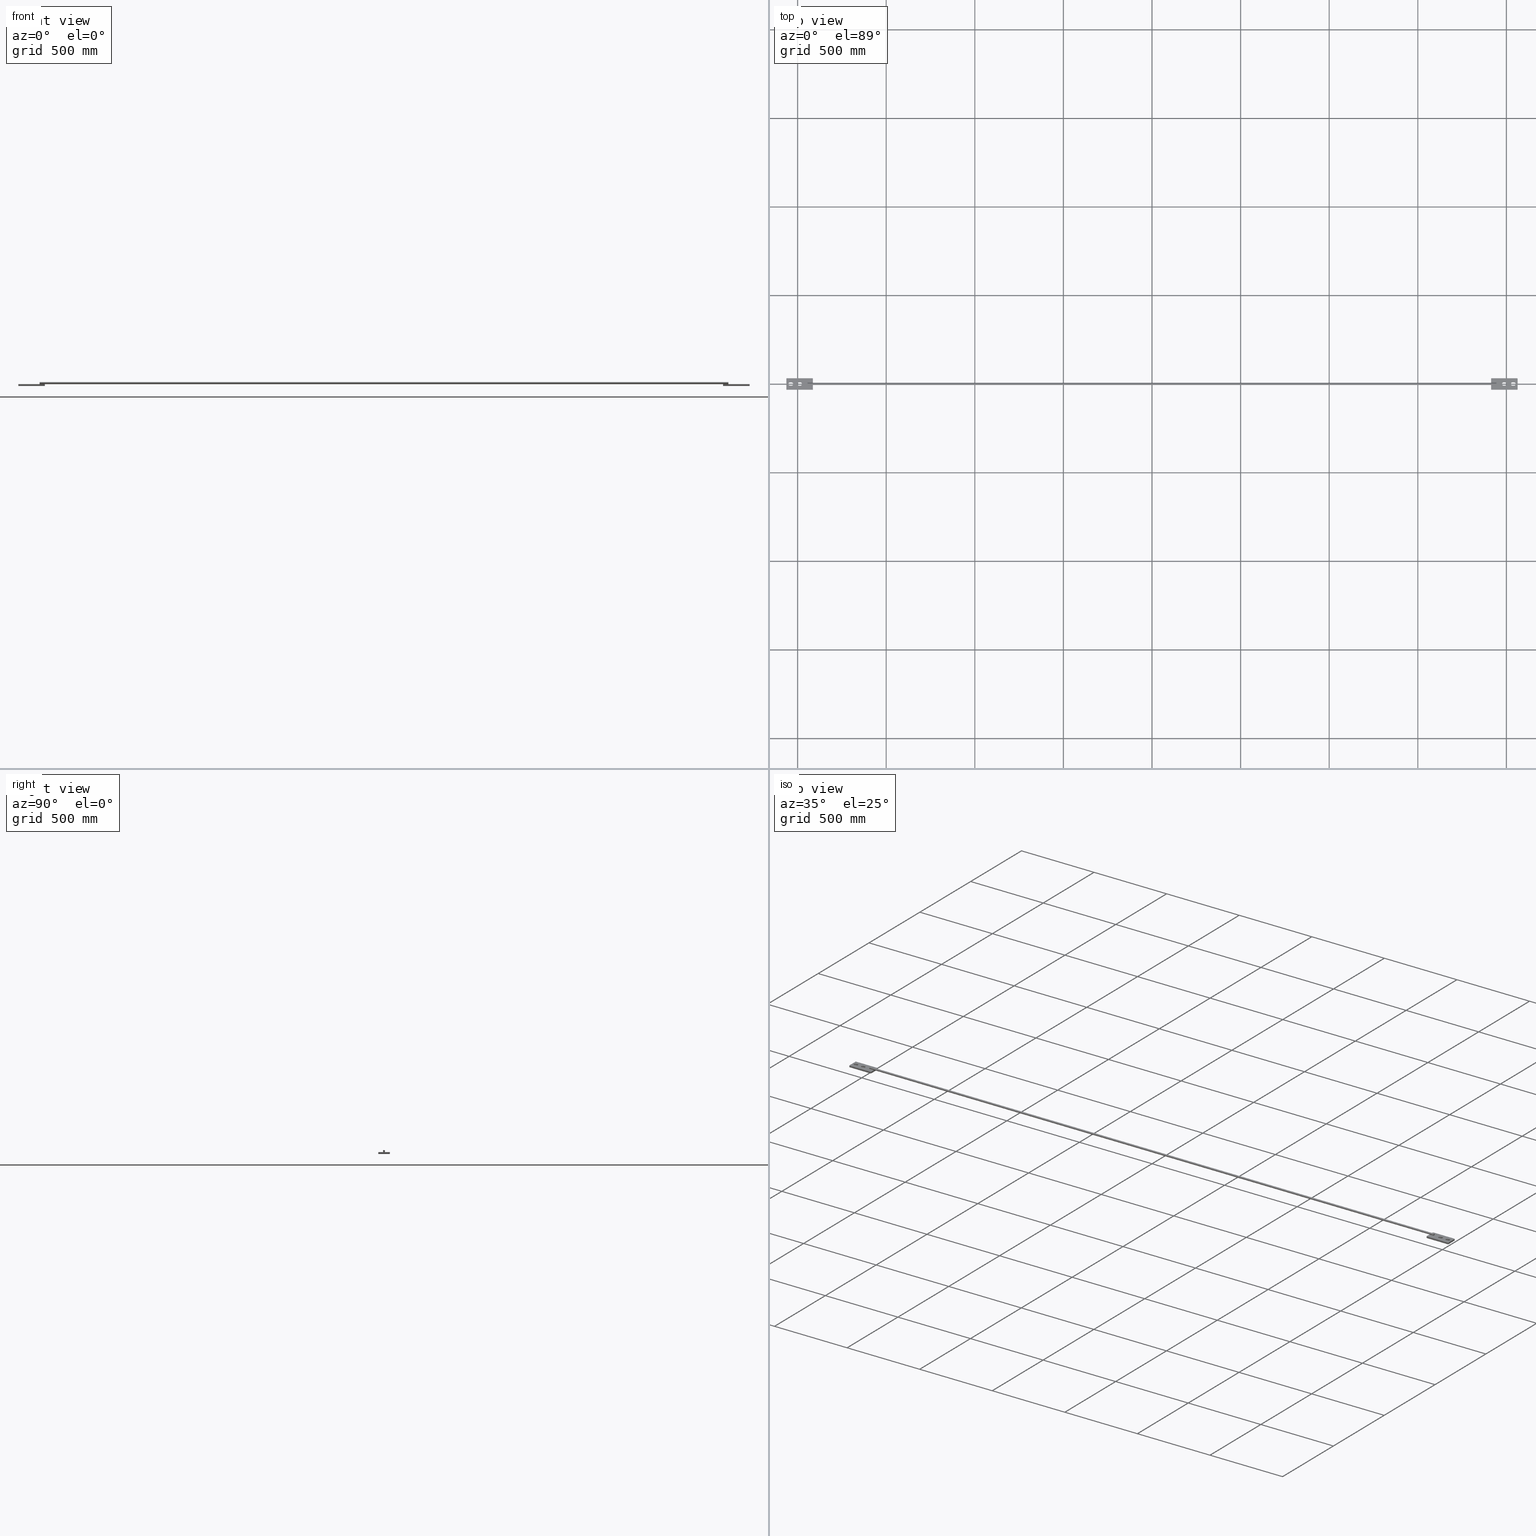
[diagram: canonical four-view strip — front | top / right | iso, engineering-drawing reading convention]
A machine part, canonical four-view strip (front | top / right | iso — engineering-drawing reading convention). The complete STEP part file that produces these views, byte-faithful:
ISO-10303-21;
HEADER;
FILE_DESCRIPTION (( 'STEP AP203' ),
    '1' );
FILE_NAME ('3982-38_REV_.step',
    '2026-02-01T20:36:29',
    ( '' ),
    ( '' ),
    'SwSTEP 2.0',
    'SolidWorks 2025',
    '' );
FILE_SCHEMA (( 'CONFIG_CONTROL_DESIGN' ));
ENDSEC;

DATA;
#1 = LINE ( 'NONE', #425, #875 ) ;
#2 = DIRECTION ( 'NONE',  ( -0.000000000000000000, -1.000000000000000000, -0.000000000000000000 ) ) ;
#3 = DIRECTION ( 'NONE',  ( 0.000000000000000000, 0.000000000000000000, 1.000000000000000000 ) ) ;
#4 = LINE ( 'NONE', #415, #1034 ) ;
#5 = SECURITY_CLASSIFICATION_LEVEL ( 'unclassified' ) ;
#6 = ORIENTED_EDGE ( 'NONE', *, *, #895, .T. ) ;
#7 = CARTESIAN_POINT ( 'NONE',  ( 1.745121688784974086E-15, -9.499999999999975131, -10.00000000000000000 ) ) ;
#8 = FACE_OUTER_BOUND ( 'NONE', #775, .T. ) ;
#9 = LINE ( 'NONE', #666, #1050 ) ;
#10 = COORDINATED_UNIVERSAL_TIME_OFFSET ( 10, 0, .AHEAD. ) ;
#11 = DIRECTION ( 'NONE',  ( -1.000000000000000000, -1.836970198721029934E-16, -0.000000000000000000 ) ) ;
#12 = EDGE_CURVE ( 'NONE', #268, #545, #1008, .T. ) ;
#13 = AXIS2_PLACEMENT_3D ( 'NONE', #20, #361, #694 ) ;
#14 = DIRECTION ( 'NONE',  ( -1.224646799147353207E-16, 1.000000000000000000, 0.000000000000000000 ) ) ;
#15 = EDGE_LOOP ( 'NONE', ( #678, #683, #617, #657 ) ) ;
#16 = VECTOR ( 'NONE', #983, 1000.000000000000000 ) ;
#17 = DATE_AND_TIME ( #335, #263 ) ;
#18 = LOCAL_TIME ( 7, 36, 29.00000000000000000, #403 ) ;
#19 = CC_DESIGN_APPROVAL ( #953, ( #952 ) ) ;
#20 = CARTESIAN_POINT ( 'NONE',  ( -71.00000000000000000, 6.858022075225179341E-15, -10.00000000000000000 ) ) ;
#21 = APPROVAL ( #294, 'UNSPECIFIED' ) ;
#22 = SHAPE_REPRESENTATION_RELATIONSHIP ( 'NONE' , 'NONE' ,  #151, #960 ) ;
#23 = VERTEX_POINT ( 'NONE', #1003 ) ;
#24 = CARTESIAN_POINT ( 'NONE',  ( -79.00000000000000000, 5.388445916248353619E-15, -10.00000000000000000 ) ) ;
#25 =( NAMED_UNIT ( * ) PLANE_ANGLE_UNIT ( ) SI_UNIT ( $, .RADIAN. ) );
#26 = CALENDAR_DATE ( 2026, 2, 2 ) ;
#27 = ORIENTED_EDGE ( 'NONE', *, *, #890, .T. ) ;
#28 = EDGE_CURVE ( 'NONE', #276, #685, #41, .T. ) ;
#29 = EDGE_CURVE ( 'NONE', #993, #984, #751, .T. ) ;
#30 = AXIS2_PLACEMENT_3D ( 'NONE', #750, #248, #271 ) ;
#31 = ORIENTED_EDGE ( 'NONE', *, *, #572, .F. ) ;
#32 = APPROVAL_PERSON_ORGANIZATION ( #59, #63, #635 ) ;
#33 = CC_DESIGN_PERSON_AND_ORGANIZATION_ASSIGNMENT ( #62, #1075, ( #412 ) ) ;
#34 = DIRECTION ( 'NONE',  ( 0.000000000000000000, 0.000000000000000000, 1.000000000000000000 ) ) ;
#35 = ORIENTED_EDGE ( 'NONE', *, *, #877, .T. ) ;
#36 = PERSON_AND_ORGANIZATION ( #906, #119 ) ;
#37 = CARTESIAN_POINT ( 'NONE',  ( -150.0000000000000000, 29.50000000000001776, -10.00000000000000000 ) ) ;
#38 = ORIENTED_EDGE ( 'NONE', *, *, #978, .F. ) ;
#39 = CARTESIAN_POINT ( 'NONE',  ( -79.00000000000000000, 9.500000000000000000, 0.000000000000000000 ) ) ;
#40 = SHAPE_DEFINITION_REPRESENTATION ( #985, #151 ) ;
#41 = CIRCLE ( 'NONE', #325, 3.000000000000000000 ) ;
#42 = PERSON_AND_ORGANIZATION_ROLE ( 'creator' ) ;
#43 = EDGE_CURVE ( 'NONE', #299, #467, #715, .T. ) ;
#44 = LINE ( 'NONE', #484, #966 ) ;
#45 = EDGE_LOOP ( 'NONE', ( #955, #1085, #432, #350 ) ) ;
#46 = CIRCLE ( 'NONE', #864, 9.499999999999994671 ) ;
#47 = LINE ( 'NONE', #726, #912 ) ;
#48 = CC_DESIGN_APPROVAL ( #804, ( #1011 ) ) ;
#49 = APPROVAL_PERSON_ORGANIZATION ( #627, #919, #267 ) ;
#50 = APPROVAL_ROLE ( '' ) ;
#51 = CARTESIAN_POINT ( 'NONE',  ( -147.0000000000000000, 29.50000000000002132, -10.00000000000000000 ) ) ;
#52 = CC_DESIGN_PERSON_AND_ORGANIZATION_ASSIGNMENT ( #805, #42, ( #737 ) ) ;
#53 = EDGE_LOOP ( 'NONE', ( #27, #118, #537, #823 ) ) ;
#54 = CYLINDRICAL_SURFACE ( 'NONE', #701, 9.499999999999994671 ) ;
#55 = EDGE_LOOP ( 'NONE', ( #113, #743, #629, #574, #440, #624, #141, #97 ) ) ;
#56 = APPLICATION_CONTEXT ( 'configuration controlled 3d designs of mechanical parts and assemblies' ) ;
#57 = EDGE_CURVE ( 'NONE', #467, #305, #674, .T. ) ;
#58 = DIRECTION ( 'NONE',  ( -1.000000000000000000, -1.836970198721029934E-16, -0.000000000000000000 ) ) ;
#59 = PERSON_AND_ORGANIZATION ( #906, #119 ) ;
#60 = FACE_OUTER_BOUND ( 'NONE', #84, .T. ) ;
#61 = ORIENTED_EDGE ( 'NONE', *, *, #974, .T. ) ;
#62 = PERSON_AND_ORGANIZATION ( #906, #119 ) ;
#63 = APPROVAL ( #295, 'UNSPECIFIED' ) ;
#64 = CIRCLE ( 'NONE', #82, 9.499999999999994671 ) ;
#65 = APPROVAL_PERSON_ORGANIZATION ( #1044, #21, #302 ) ;
#66 = LOCAL_TIME ( 7, 36, 29.00000000000000000, #257 ) ;
#67 = CARTESIAN_POINT ( 'NONE',  ( -121.0000000000000000, -4.898587196589372400E-16, -10.00000000000000000 ) ) ;
#68 = EDGE_LOOP ( 'NONE', ( #711, #980 ) ) ;
#69 = MECHANICAL_CONTEXT ( 'NONE', #782, 'mechanical' ) ;
#70 = EDGE_CURVE ( 'NONE', #545, #858, #931, .T. ) ;
#71 = DIRECTION ( 'NONE',  ( 1.000000000000000000, 0.000000000000000000, -0.000000000000000000 ) ) ;
#72 = ORIENTED_EDGE ( 'NONE', *, *, #482, .T. ) ;
#73 = CARTESIAN_POINT ( 'NONE',  ( -147.0000000000000000, -32.49999999999997868, 0.000000000000000000 ) ) ;
#74 = PERSON_AND_ORGANIZATION ( #906, #119 ) ;
#75 = DIRECTION ( 'NONE',  ( 1.000000000000000000, 0.000000000000000000, 0.000000000000000000 ) ) ;
#76 = FACE_OUTER_BOUND ( 'NONE', #68, .T. ) ;
#77 = ORIENTED_EDGE ( 'NONE', *, *, #1024, .F. ) ;
#78 = APPROVAL_ROLE ( '' ) ;
#79 = EDGE_LOOP ( 'NONE', ( #951, #398, #977, #318, #1028, #206, #1013, #493 ) ) ;
#80 = CARTESIAN_POINT ( 'NONE',  ( 1943.500000000000000, 6.000000000000714984, 7.347880794884557554E-16 ) ) ;
#81 = AXIS2_PLACEMENT_3D ( 'NONE', #865, #89, #763 ) ;
#82 = AXIS2_PLACEMENT_3D ( 'NONE', #806, #570, #393 ) ;
#83 = DIRECTION ( 'NONE',  ( 0.000000000000000000, 0.000000000000000000, -1.000000000000000000 ) ) ;
#84 = EDGE_LOOP ( 'NONE', ( #732, #402, #648, #781 ) ) ;
#85 = CARTESIAN_POINT ( 'NONE',  ( -147.0000000000000000, 29.50000000000002132, 0.000000000000000000 ) ) ;
#86 = PERSON_AND_ORGANIZATION_ROLE ( 'classification_officer' ) ;
#87 = DESIGN_CONTEXT ( 'detailed design', #56, 'design' ) ;
#88 = VERTEX_POINT ( 'NONE', #820 ) ;
#89 = DIRECTION ( 'NONE',  ( 3.700743415417188632E-16, 1.000000000000000000, -0.000000000000000000 ) ) ;
#90 = DIRECTION ( 'NONE',  ( 1.000000000000000000, 0.000000000000000000, 0.000000000000000000 ) ) ;
#91 = CYLINDRICAL_SURFACE ( 'NONE', #195, 9.499999999999994671 ) ;
#92 = SHAPE_DEFINITION_REPRESENTATION ( #844, #345 ) ;
#93 = EDGE_LOOP ( 'NONE', ( #916, #638 ) ) ;
#94 = LINE ( 'NONE', #105, #258 ) ;
#95 = ADVANCED_FACE ( 'NONE', ( #478 ), #986, .F. ) ;
#96 = LINE ( 'NONE', #439, #138 ) ;
#97 = ORIENTED_EDGE ( 'NONE', *, *, #1081, .T. ) ;
#98 = CARTESIAN_POINT ( 'NONE',  ( -150.0000000000000000, -29.49999999999998224, 0.000000000000000000 ) ) ;
#99 = CALENDAR_DATE ( 2026, 2, 2 ) ;
#100 = ORIENTED_EDGE ( 'NONE', *, *, #364, .F. ) ;
#101 = CARTESIAN_POINT ( 'NONE',  ( -1943.500000000000000, -6.000000000000001776, 0.000000000000000000 ) ) ;
#102 = VECTOR ( 'NONE', #672, 1000.000000000000000 ) ;
#103 = CC_DESIGN_PERSON_AND_ORGANIZATION_ASSIGNMENT ( #386, #400, ( #737 ) ) ;
#104 = CIRCLE ( 'NONE', #1048, 3.000000000000000000 ) ;
#105 = CARTESIAN_POINT ( 'NONE',  ( 1.990051048614446946E-15, 32.49999999999996447, -10.00000000000000000 ) ) ;
#106 = ADVANCED_FACE ( 'NONE', ( #152 ), #826, .F. ) ;
#107 = ORIENTED_EDGE ( 'NONE', *, *, #362, .F. ) ;
#108 = EDGE_CURVE ( 'NONE', #480, #613, #630, .T. ) ;
#109 = CARTESIAN_POINT ( 'NONE',  ( 0.000000000000000000, 0.000000000000000000, 0.000000000000000000 ) ) ;
#110 = PERSON_AND_ORGANIZATION_ROLE ( 'classification_officer' ) ;
#111 = PLANE ( 'NONE',  #1064 ) ;
#112 = CC_DESIGN_PERSON_AND_ORGANIZATION_ASSIGNMENT ( #967, #486, ( #1070 ) ) ;
#113 = ORIENTED_EDGE ( 'NONE', *, *, #291, .T. ) ;
#114 = DIRECTION ( 'NONE',  ( 1.000000000000000000, 1.836970198721029934E-16, -0.000000000000000000 ) ) ;
#115 = CARTESIAN_POINT ( 'NONE',  ( -1913.499999999999773, -1.857930705787511217E-13, -6.000000000000000888 ) ) ;
#116 = DIRECTION ( 'NONE',  ( 1.000000000000000000, 0.000000000000000000, 0.000000000000000000 ) ) ;
#117 = CIRCLE ( 'NONE', #226, 6.000000000000000888 ) ;
#118 = ORIENTED_EDGE ( 'NONE', *, *, #586, .F. ) ;
#119 = ORGANIZATION ( 'UNSPECIFIED', 'UNSPECIFIED', '' ) ;
#120 = PERSON_AND_ORGANIZATION ( #906, #119 ) ;
#121 = EDGE_CURVE ( 'NONE', #312, #168, #310, .T. ) ;
#122 =( NAMED_UNIT ( * ) SI_UNIT ( $, .STERADIAN. ) SOLID_ANGLE_UNIT ( ) );
#123 = CARTESIAN_POINT ( 'NONE',  ( 9.950255243072235521E-15, -32.49999999999996447, 0.000000000000000000 ) ) ;
#124 = EDGE_LOOP ( 'NONE', ( #567, #287, #77, #238 ) ) ;
#125 = DIRECTION ( 'NONE',  ( 9.251858538542971581E-17, -1.000000000000000000, 0.000000000000000000 ) ) ;
#126 = PERSON_AND_ORGANIZATION_ROLE ( 'creator' ) ;
#127 = ADVANCED_FACE ( 'NONE', ( #1069 ), #991, .F. ) ;
#128 = MANIFOLD_SOLID_BREP ( 'Rod 12 ROD(1)', #825 ) ;
#129 = DATE_AND_TIME ( #902, #175 ) ;
#130 = LINE ( 'NONE', #470, #735 ) ;
#131 = VERTEX_POINT ( 'NONE', #315 ) ;
#132 = CC_DESIGN_PERSON_AND_ORGANIZATION_ASSIGNMENT ( #246, #359, ( #1035 ) ) ;
#133 = MANIFOLD_SOLID_BREP ( 'Fillet1', #994 ) ;
#134 = DATE_TIME_ROLE ( 'creation_date' ) ;
#135 = DIRECTION ( 'NONE',  ( -0.000000000000000000, -0.000000000000000000, 1.000000000000000000 ) ) ;
#136 = ORIENTED_EDGE ( 'NONE', *, *, #70, .F. ) ;
#137 = APPLICATION_CONTEXT ( 'configuration controlled 3d designs of mechanical parts and assemblies' ) ;
#138 = VECTOR ( 'NONE', #14, 1000.000000000000000 ) ;
#139 = COORDINATED_UNIVERSAL_TIME_OFFSET ( 10, 0, .AHEAD. ) ;
#140 = DIRECTION ( 'NONE',  ( 1.000000000000000000, 0.000000000000000000, 0.000000000000000000 ) ) ;
#141 = ORIENTED_EDGE ( 'NONE', *, *, #29, .T. ) ;
#142 = EDGE_CURVE ( 'NONE', #264, #876, #1080, .T. ) ;
#143 = CARTESIAN_POINT ( 'NONE',  ( -1.745121688784981383E-15, 9.500000000000017764, -10.00000000000000000 ) ) ;
#144 = ORIENTED_EDGE ( 'NONE', *, *, #142, .T. ) ;
#145 = PERSON_AND_ORGANIZATION_ROLE ( 'classification_officer' ) ;
#146 = PRODUCT_DEFINITION_SHAPE ( 'NONE', 'NONE',  #1087 ) ;
#147 = PERSON_AND_ORGANIZATION ( #906, #119 ) ;
#148 = DIRECTION ( 'NONE',  ( 1.000000000000000000, 9.251858538542971581E-17, -0.000000000000000000 ) ) ;
#149 = ORIENTED_EDGE ( 'NONE', *, *, #620, .T. ) ;
#150 = DATE_AND_TIME ( #708, #634 ) ;
#151 = SHAPE_REPRESENTATION ( '3982-38-10', ( #405 ), #584 ) ;
#152 = FACE_OUTER_BOUND ( 'NONE', #1061, .T. ) ;
#153 = AXIS2_PLACEMENT_3D ( 'NONE', #900, #652, #140 ) ;
#154 = CC_DESIGN_APPROVAL ( #21, ( #412 ) ) ;
#155 = PERSON ( 'NAUO-PER2', 'UNSPECIFIED', 'UNSPECIFIED', ('UNSPECIFIED'), ('UNSPECIFIED'), ('UNSPECIFIED') ) ;
#156 = APPROVAL_PERSON_ORGANIZATION ( #374, #755, #779 ) ;
#157 = CARTESIAN_POINT ( 'NONE',  ( -61.50000000000000000, 6.858022075225179341E-15, -10.00000000000000000 ) ) ;
#158 = ORIENTED_EDGE ( 'NONE', *, *, #747, .T. ) ;
#159 = LINE ( 'NONE', #753, #651 ) ;
#160 = PERSON_AND_ORGANIZATION ( #906, #119 ) ;
#161 = EDGE_CURVE ( 'NONE', #707, #921, #191, .T. ) ;
#162 = DIRECTION ( 'NONE',  ( -0.000000000000000000, -0.000000000000000000, 1.000000000000000000 ) ) ;
#163 = DIRECTION ( 'NONE',  ( 1.000000000000000000, 1.836970198721029934E-16, -0.000000000000000000 ) ) ;
#164 = DIRECTION ( 'NONE',  ( 0.000000000000000000, 0.000000000000000000, 1.000000000000000000 ) ) ;
#165 = COORDINATED_UNIVERSAL_TIME_OFFSET ( 10, 0, .AHEAD. ) ;
#166 = FACE_OUTER_BOUND ( 'NONE', #927, .T. ) ;
#167 = CARTESIAN_POINT ( 'NONE',  ( -71.00000000000000000, 9.500000000000001776, 0.000000000000000000 ) ) ;
#168 = VERTEX_POINT ( 'NONE', #101 ) ;
#169 = CARTESIAN_POINT ( 'NONE',  ( -150.0000000000000000, 29.50000000000001776, 0.000000000000000000 ) ) ;
#170 = APPROVAL_STATUS ( 'not_yet_approved' ) ;
#171 = AXIS2_PLACEMENT_3D ( 'NONE', #1030, #337, #769 ) ;
#172 = ORIENTED_EDGE ( 'NONE', *, *, #527, .F. ) ;
#173 = DIRECTION ( 'NONE',  ( -0.000000000000000000, -0.000000000000000000, 1.000000000000000000 ) ) ;
#174 = CIRCLE ( 'NONE', #789, 6.000000000000000888 ) ;
#175 = LOCAL_TIME ( 7, 36, 29.00000000000000000, #139 ) ;
#176 = DIRECTION ( 'NONE',  ( 0.000000000000000000, 1.000000000000000000, 0.000000000000000000 ) ) ;
#177 = CARTESIAN_POINT ( 'NONE',  ( -121.0000000000000000, -9.499999999999994671, 0.000000000000000000 ) ) ;
#178 = DIRECTION ( 'NONE',  ( -0.000000000000000000, -0.000000000000000000, 1.000000000000000000 ) ) ;
#179 = ITEM_DEFINED_TRANSFORMATION ( 'NONE', 'NONE', #354,  #405 ) ;
#180 = ADVANCED_FACE ( 'NONE', ( #783 ), #351, .F. ) ;
#181 = UNCERTAINTY_MEASURE_WITH_UNIT (LENGTH_MEASURE( 1.000000000000000082E-05 ), #201, 'distance_accuracy_value', 'NONE');
#182 = CARTESIAN_POINT ( 'NONE',  ( -61.50000000000000000, 6.858022075225179341E-15, 0.000000000000000000 ) ) ;
#183 = LINE ( 'NONE', #1007, #1082 ) ;
#184 = ORIENTED_EDGE ( 'NONE', *, *, #539, .T. ) ;
#185 = CARTESIAN_POINT ( 'NONE',  ( -147.0000000000000000, -29.49999999999998224, 0.000000000000000000 ) ) ;
#186 = COORDINATED_UNIVERSAL_TIME_OFFSET ( 10, 0, .AHEAD. ) ;
#187 = EDGE_LOOP ( 'NONE', ( #455, #965, #409, #834 ) ) ;
#188 = CC_DESIGN_PERSON_AND_ORGANIZATION_ASSIGNMENT ( #147, #554, ( #592 ) ) ;
#189 = CARTESIAN_POINT ( 'NONE',  ( -150.0000000000000000, 29.50000000000001776, -10.00000000000000000 ) ) ;
#190 = CALENDAR_DATE ( 2026, 2, 2 ) ;
#191 = CIRCLE ( 'NONE', #649, 3.000000000000002665 ) ;
#192 = DIRECTION ( 'NONE',  ( 1.000000000000000000, 0.000000000000000000, 0.000000000000000000 ) ) ;
#193 = EDGE_CURVE ( 'NONE', #729, #889, #679, .T. ) ;
#194 = CIRCLE ( 'NONE', #532, 3.000000000000000000 ) ;
#195 = AXIS2_PLACEMENT_3D ( 'NONE', #328, #436, #766 ) ;
#196 =( NAMED_UNIT ( * ) PLANE_ANGLE_UNIT ( ) SI_UNIT ( $, .RADIAN. ) );
#197 = CC_DESIGN_APPROVAL ( #919, ( #1035 ) ) ;
#198 = CARTESIAN_POINT ( 'NONE',  ( 2.357445088358654363E-15, 29.49999999999996447, -10.00000000000000000 ) ) ;
#199 = VERTEX_POINT ( 'NONE', #80 ) ;
#200 = PRODUCT_RELATED_PRODUCT_CATEGORY ( 'detail', '', ( #1070 ) ) ;
#201 =( LENGTH_UNIT ( ) NAMED_UNIT ( * ) SI_UNIT ( .MILLI., .METRE. ) );
#202 = CARTESIAN_POINT ( 'NONE',  ( -129.0000000000000000, -1.959434878635762370E-15, -2.449293598294708386E-16 ) ) ;
#203 = ORIENTED_EDGE ( 'NONE', *, *, #911, .T. ) ;
#204 = CARTESIAN_POINT ( 'NONE',  ( -1943.500000000000000, 0.000000000000000000, 0.000000000000000000 ) ) ;
#205 = FACE_OUTER_BOUND ( 'NONE', #908, .T. ) ;
#206 = ORIENTED_EDGE ( 'NONE', *, *, #696, .T. ) ;
#207 = APPROVAL_DATE_TIME ( #324, #804 ) ;
#208 = AXIS2_PLACEMENT_3D ( 'NONE', #812, #237, #728 ) ;
#209 = EDGE_LOOP ( 'NONE', ( #149, #670, #379, #144, #541 ) ) ;
#210 = EDGE_CURVE ( 'NONE', #876, #525, #593, .T. ) ;
#211 = LOCAL_TIME ( 7, 36, 29.00000000000000000, #213 ) ;
#212 = APPLICATION_PROTOCOL_DEFINITION ( 'international standard', 'config_control_design', 1994, #871 ) ;
#213 = COORDINATED_UNIVERSAL_TIME_OFFSET ( 10, 0, .AHEAD. ) ;
#214 = FACE_BOUND ( 'NONE', #420, .T. ) ;
#215 = ORIENTED_EDGE ( 'NONE', *, *, #57, .F. ) ;
#216 = APPROVAL ( #495, 'UNSPECIFIED' ) ;
#217 = PERSON_AND_ORGANIZATION ( #906, #119 ) ;
#218 = PERSON_AND_ORGANIZATION_ROLE ( 'classification_officer' ) ;
#219 = CARTESIAN_POINT ( 'NONE',  ( -2.999999999999990674, -29.49999999999996803, -10.00000000000000000 ) ) ;
#220 = ORIENTED_EDGE ( 'NONE', *, *, #784, .F. ) ;
#221 = EDGE_CURVE ( 'NONE', #1058, #894, #94, .T. ) ;
#222 = APPROVAL_DATE_TIME ( #821, #298 ) ;
#223 = DIRECTION ( 'NONE',  ( 1.000000000000000000, 0.000000000000000000, 0.000000000000000000 ) ) ;
#224 = ORIENTED_EDGE ( 'NONE', *, *, #1059, .T. ) ;
#225 = CIRCLE ( 'NONE', #13, 9.499999999999994671 ) ;
#226 = AXIS2_PLACEMENT_3D ( 'NONE', #378, #450, #710 ) ;
#227 = APPROVAL_PERSON_ORGANIZATION ( #74, #594, #380 ) ;
#228 = SECURITY_CLASSIFICATION ( '', '', #437 ) ;
#229 = CC_DESIGN_DATE_AND_TIME_ASSIGNMENT ( #392, #1056, ( #261 ) ) ;
#230 = CARTESIAN_POINT ( 'NONE',  ( -121.0000000000000000, -4.898587196589372400E-16, -2.449293598294708386E-16 ) ) ;
#231 = ORIENTED_EDGE ( 'NONE', *, *, #193, .F. ) ;
#232 = MECHANICAL_CONTEXT ( 'NONE', #791, 'mechanical' ) ;
#233 = DIRECTION ( 'NONE',  ( 0.000000000000000000, 0.000000000000000000, 1.000000000000000000 ) ) ;
#234 = ORIENTED_EDGE ( 'NONE', *, *, #609, .F. ) ;
#235 = MECHANICAL_CONTEXT ( 'NONE', #137, 'mechanical' ) ;
#236 = EDGE_CURVE ( 'NONE', #921, #984, #1, .T. ) ;
#237 = DIRECTION ( 'NONE',  ( 1.000000000000000000, 1.224646799147353207E-16, -0.000000000000000000 ) ) ;
#238 = ORIENTED_EDGE ( 'NONE', *, *, #946, .F. ) ;
#239 = DATE_AND_TIME ( #990, #18 ) ;
#240 = ADVANCED_FACE ( 'NONE', ( #166 ), #610, .F. ) ;
#241 = VECTOR ( 'NONE', #355, 1000.000000000000000 ) ;
#242 =( GEOMETRIC_REPRESENTATION_CONTEXT ( 3 ) GLOBAL_UNCERTAINTY_ASSIGNED_CONTEXT ( ( #181 ) ) GLOBAL_UNIT_ASSIGNED_CONTEXT ( ( #201, #25, #536 ) ) REPRESENTATION_CONTEXT ( 'NONE', 'WORKASPACE' ) );
#243 = APPROVAL_PERSON_ORGANIZATION ( #442, #953, #849 ) ;
#244 = DIRECTION ( 'NONE',  ( -1.836970198721029934E-16, 1.000000000000000000, 0.000000000000000000 ) ) ;
#245 = CYLINDRICAL_SURFACE ( 'NONE', #332, 3.000000000000002665 ) ;
#246 = PERSON_AND_ORGANIZATION ( #906, #119 ) ;
#247 = PRODUCT_RELATED_PRODUCT_CATEGORY ( 'detail', '', ( #592 ) ) ;
#248 = DIRECTION ( 'NONE',  ( 0.000000000000000000, 0.000000000000000000, 1.000000000000000000 ) ) ;
#249 = ORIENTED_EDGE ( 'NONE', *, *, #677, .F. ) ;
#250 = APPROVAL_DATE_TIME ( #943, #576 ) ;
#251 = UNCERTAINTY_MEASURE_WITH_UNIT (LENGTH_MEASURE( 1.000000000000000082E-05 ), #616, 'distance_accuracy_value', 'NONE');
#252 = CARTESIAN_POINT ( 'NONE',  ( 9.582861203328030076E-15, -29.49999999999996803, -10.00000000000000000 ) ) ;
#253 = EDGE_CURVE ( 'NONE', #937, #480, #1016, .T. ) ;
#254 = DIRECTION ( 'NONE',  ( 1.000000000000000000, -2.312964634635742661E-15, 0.000000000000000000 ) ) ;
#255 = CARTESIAN_POINT ( 'NONE',  ( 9.582861203328030076E-15, -29.49999999999996803, -10.00000000000000000 ) ) ;
#256 = VECTOR ( 'NONE', #163, 1000.000000000000000 ) ;
#257 = COORDINATED_UNIVERSAL_TIME_OFFSET ( 10, 0, .AHEAD. ) ;
#258 = VECTOR ( 'NONE', #344, 1000.000000000000000 ) ;
#259 = CARTESIAN_POINT ( 'NONE',  ( 2.357445088358654363E-15, 29.49999999999996447, 0.000000000000000000 ) ) ;
#260 = AXIS2_PLACEMENT_3D ( 'NONE', #771, #930, #244 ) ;
#261 = SECURITY_CLASSIFICATION ( '', '', #303 ) ;
#262 = CARTESIAN_POINT ( 'NONE',  ( -2.999999999999997780, 29.49999999999996447, -10.00000000000000000 ) ) ;
#263 = LOCAL_TIME ( 7, 36, 29.00000000000000000, #10 ) ;
#264 = VERTEX_POINT ( 'NONE', #1010 ) ;
#265 = CC_DESIGN_DATE_AND_TIME_ASSIGNMENT ( #640, #289, ( #412 ) ) ;
#266 = CARTESIAN_POINT ( 'NONE',  ( -79.00000000000000000, 9.500000000000000000, -2.449293598294708386E-16 ) ) ;
#267 = APPROVAL_ROLE ( '' ) ;
#268 = VERTEX_POINT ( 'NONE', #531 ) ;
#269 = DIRECTION ( 'NONE',  ( 0.000000000000000000, 0.000000000000000000, 1.000000000000000000 ) ) ;
#270 = SHAPE_REPRESENTATION ( '3982-38_REV_', ( #391, #777, #300, #354 ), #475 ) ;
#271 = DIRECTION ( 'NONE',  ( 1.000000000000000000, 0.000000000000000000, 0.000000000000000000 ) ) ;
#272 = DIRECTION ( 'NONE',  ( 0.000000000000000000, 0.000000000000000000, 1.000000000000000000 ) ) ;
#273 = APPROVAL_STATUS ( 'not_yet_approved' ) ;
#274 = ORIENTED_EDGE ( 'NONE', *, *, #868, .F. ) ;
#275 = CARTESIAN_POINT ( 'NONE',  ( -79.00000000000000000, -9.500000000000065725, 0.000000000000000000 ) ) ;
#276 = VERTEX_POINT ( 'NONE', #259 ) ;
#277 = VECTOR ( 'NONE', #601, 1000.000000000000000 ) ;
#278 = AXIS2_PLACEMENT_3D ( 'NONE', #935, #1022, #687 ) ;
#279 = DIRECTION ( 'NONE',  ( 0.000000000000000000, 0.000000000000000000, 1.000000000000000000 ) ) ;
#280 = VECTOR ( 'NONE', #822, 1000.000000000000000 ) ;
#281 = LOCAL_TIME ( 7, 36, 29.00000000000000000, #307 ) ;
#282 = CARTESIAN_POINT ( 'NONE',  ( 0.000000000000000000, 0.000000000000000000, 0.000000000000000000 ) ) ;
#283 = CC_DESIGN_SECURITY_CLASSIFICATION ( #952, ( #1086 ) ) ;
#284 = CARTESIAN_POINT ( 'NONE',  ( 0.000000000000000000, 0.000000000000000000, 0.000000000000000000 ) ) ;
#285 = ORIENTED_EDGE ( 'NONE', *, *, #422, .F. ) ;
#286 = DIRECTION ( 'NONE',  ( 0.000000000000000000, 0.000000000000000000, 1.000000000000000000 ) ) ;
#287 = ORIENTED_EDGE ( 'NONE', *, *, #539, .F. ) ;
#288 = FACE_OUTER_BOUND ( 'NONE', #45, .T. ) ;
#289 = DATE_TIME_ROLE ( 'creation_date' ) ;
#290 = DIRECTION ( 'NONE',  ( 0.000000000000000000, 0.000000000000000000, 1.000000000000000000 ) ) ;
#291 = EDGE_CURVE ( 'NONE', #1033, #299, #923, .T. ) ;
#292 = FACE_BOUND ( 'NONE', #807, .T. ) ;
#293 = ORIENTED_EDGE ( 'NONE', *, *, #253, .F. ) ;
#294 = APPROVAL_STATUS ( 'not_yet_approved' ) ;
#295 = APPROVAL_STATUS ( 'not_yet_approved' ) ;
#296 = AXIS2_PLACEMENT_3D ( 'NONE', #884, #125, #972 ) ;
#297 = FACE_OUTER_BOUND ( 'NONE', #55, .T. ) ;
#298 = APPROVAL ( #722, 'UNSPECIFIED' ) ;
#299 = VERTEX_POINT ( 'NONE', #615 ) ;
#300 = AXIS2_PLACEMENT_3D ( 'NONE', #692, #869, #611 ) ;
#301 = CARTESIAN_POINT ( 'NONE',  ( -2.999999999999997780, 29.49999999999996447, -10.00000000000000000 ) ) ;
#302 = APPROVAL_ROLE ( '' ) ;
#303 = SECURITY_CLASSIFICATION_LEVEL ( 'unclassified' ) ;
#304 = CARTESIAN_POINT ( 'NONE',  ( -71.00000000000000000, 9.500000000000001776, -10.00000000000000000 ) ) ;
#305 = VERTEX_POINT ( 'NONE', #252 ) ;
#306 = ADVANCED_FACE ( 'NONE', ( #929 ), #605, .T. ) ;
#307 = COORDINATED_UNIVERSAL_TIME_OFFSET ( 10, 0, .AHEAD. ) ;
#308 = CARTESIAN_POINT ( 'NONE',  ( -2.999999999999996447, 32.49999999999996447, 0.000000000000000000 ) ) ;
#309 = ORIENTED_EDGE ( 'NONE', *, *, #587, .F. ) ;
#310 = LINE ( 'NONE', #481, #680 ) ;
#311 = CARTESIAN_POINT ( 'NONE',  ( -121.0000000000000000, 9.499999999999994671, 0.000000000000000000 ) ) ;
#312 = VERTEX_POINT ( 'NONE', #451 ) ;
#313 = VECTOR ( 'NONE', #178, 1000.000000000000000 ) ;
#314 = APPROVAL_PERSON_ORGANIZATION ( #973, #216, #410 ) ;
#315 = CARTESIAN_POINT ( 'NONE',  ( -121.0000000000000000, 9.499999999999994671, -10.00000000000000000 ) ) ;
#316 = APPROVAL_PERSON_ORGANIZATION ( #676, #576, #78 ) ;
#317 = CARTESIAN_POINT ( 'NONE',  ( -150.0000000000000000, -32.49999999999997868, -10.00000000000000000 ) ) ;
#318 = ORIENTED_EDGE ( 'NONE', *, *, #161, .T. ) ;
#319 = COORDINATED_UNIVERSAL_TIME_OFFSET ( 10, 0, .AHEAD. ) ;
#320 = EDGE_CURVE ( 'NONE', #1033, #707, #945, .T. ) ;
#321 = PLANE ( 'NONE',  #847 ) ;
#322 = VERTEX_POINT ( 'NONE', #189 ) ;
#323 = ADVANCED_FACE ( 'NONE', ( #853 ), #526, .T. ) ;
#324 = DATE_AND_TIME ( #631, #968 ) ;
#325 = AXIS2_PLACEMENT_3D ( 'NONE', #589, #506, #840 ) ;
#326 = CARTESIAN_POINT ( 'NONE',  ( -79.00000000000000000, 5.388445916248353619E-15, -2.449293598294708386E-16 ) ) ;
#327 = ORIENTED_EDGE ( 'NONE', *, *, #622, .F. ) ;
#328 = CARTESIAN_POINT ( 'NONE',  ( -121.0000000000000000, -4.898587196589372400E-16, 0.000000000000000000 ) ) ;
#329 = CALENDAR_DATE ( 2026, 2, 2 ) ;
#330 = CC_DESIGN_PERSON_AND_ORGANIZATION_ASSIGNMENT ( #727, #887, ( #700 ) ) ;
#331 = CIRCLE ( 'NONE', #404, 6.000000000000000888 ) ;
#332 = AXIS2_PLACEMENT_3D ( 'NONE', #348, #164, #590 ) ;
#333 = CARTESIAN_POINT ( 'NONE',  ( -2.999999999999996447, 32.49999999999996447, -10.00000000000000000 ) ) ;
#334 = CARTESIAN_POINT ( 'NONE',  ( -150.0000000000000000, -32.49999999999997868, 0.000000000000000000 ) ) ;
#335 = CALENDAR_DATE ( 2026, 2, 2 ) ;
#336 = ORIENTED_EDGE ( 'NONE', *, *, #142, .F. ) ;
#337 = DIRECTION ( 'NONE',  ( -0.000000000000000000, -0.000000000000000000, 1.000000000000000000 ) ) ;
#338 = EDGE_CURVE ( 'NONE', #88, #889, #494, .T. ) ;
#339 = FACE_OUTER_BOUND ( 'NONE', #79, .T. ) ;
#340 = DIRECTION ( 'NONE',  ( 1.000000000000000000, 0.000000000000000000, 0.000000000000000000 ) ) ;
#341 = CARTESIAN_POINT ( 'NONE',  ( -79.00000000000000000, -9.499999999999989342, -2.449293598294708386E-16 ) ) ;
#342 = DATE_AND_TIME ( #749, #898 ) ;
#343 = ORIENTED_EDGE ( 'NONE', *, *, #108, .T. ) ;
#344 = DIRECTION ( 'NONE',  ( -1.000000000000000000, 3.700743415417188632E-16, 0.000000000000000000 ) ) ;
#345 = SHAPE_REPRESENTATION ( '20-14', ( #405 ), #242 ) ;
#346 = CARTESIAN_POINT ( 'NONE',  ( -79.00000000000000000, -9.499999999999989342, -10.00000000000000000 ) ) ;
#347 = ORIENTED_EDGE ( 'NONE', *, *, #1081, .F. ) ;
#348 = CARTESIAN_POINT ( 'NONE',  ( -147.0000000000000000, -29.49999999999998224, -10.00000000000000000 ) ) ;
#349 = ITEM_DEFINED_TRANSFORMATION ( 'NONE', 'NONE', #777,  #405 ) ;
#350 = ORIENTED_EDGE ( 'NONE', *, *, #320, .T. ) ;
#351 = PLANE ( 'NONE',  #278 ) ;
#352 = VECTOR ( 'NONE', #509, 1000.000000000000000 ) ;
#353 = AXIS2_PLACEMENT_3D ( 'NONE', #230, #976, #893 ) ;
#354 = AXIS2_PLACEMENT_3D ( 'NONE', #709, #367, #942 ) ;
#355 = DIRECTION ( 'NONE',  ( -0.000000000000000000, -0.000000000000000000, -1.000000000000000000 ) ) ;
#356 = UNCERTAINTY_MEASURE_WITH_UNIT (LENGTH_MEASURE( 1.000000000000000082E-05 ), #542, 'distance_accuracy_value', 'NONE');
#357 = ORIENTED_EDGE ( 'NONE', *, *, #622, .T. ) ;
#358 = DIRECTION ( 'NONE',  ( 1.000000000000000000, 1.836970198721029934E-16, 0.000000000000000000 ) ) ;
#359 = PERSON_AND_ORGANIZATION_ROLE ( 'creator' ) ;
#360 = ORIENTED_EDGE ( 'NONE', *, *, #747, .F. ) ;
#361 = DIRECTION ( 'NONE',  ( 0.000000000000000000, 0.000000000000000000, 1.000000000000000000 ) ) ;
#362 = EDGE_CURVE ( 'NONE', #937, #644, #225, .T. ) ;
#363 = CARTESIAN_POINT ( 'NONE',  ( 1943.500000000000000, 7.140303162428642532E-13, 0.000000000000000000 ) ) ;
#364 = EDGE_CURVE ( 'NONE', #1043, #549, #1025, .T. ) ;
#365 = ORIENTED_EDGE ( 'NONE', *, *, #482, .F. ) ;
#366 = DIRECTION ( 'NONE',  ( 1.000000000000000000, 0.000000000000000000, 0.000000000000000000 ) ) ;
#367 = DIRECTION ( 'NONE',  ( 0.000000000000000000, 0.000000000000000000, -1.000000000000000000 ) ) ;
#368 = DIRECTION ( 'NONE',  ( 1.000000000000000000, 0.000000000000000000, -0.000000000000000000 ) ) ;
#369 = ORIENTED_EDGE ( 'NONE', *, *, #1036, .T. ) ;
#370 = CC_DESIGN_PERSON_AND_ORGANIZATION_ASSIGNMENT ( #374, #110, ( #228 ) ) ;
#371 = DIRECTION ( 'NONE',  ( -1.000000000000000000, -1.836970198721029934E-16, 0.000000000000000000 ) ) ;
#372 = CIRCLE ( 'NONE', #389, 9.499999999999994671 ) ;
#373 = LOCAL_TIME ( 7, 36, 29.00000000000000000, #817 ) ;
#374 = PERSON_AND_ORGANIZATION ( #427, #461 ) ;
#375 = ORIENTED_EDGE ( 'NONE', *, *, #121, .F. ) ;
#376 = ADVANCED_FACE ( 'NONE', ( #795 ), #786, .F. ) ;
#377 = DIRECTION ( 'NONE',  ( 1.000000000000000000, 0.000000000000000000, 0.000000000000000000 ) ) ;
#378 = CARTESIAN_POINT ( 'NONE',  ( -1943.500000000000000, 0.000000000000000000, 0.000000000000000000 ) ) ;
#379 = ORIENTED_EDGE ( 'NONE', *, *, #957, .T. ) ;
#380 = APPROVAL_ROLE ( '' ) ;
#381 = ADVANCED_FACE ( 'NONE', ( #288 ), #802, .T. ) ;
#382 = CARTESIAN_POINT ( 'NONE',  ( -111.5000000000000000, -4.898587196589372400E-16, -10.00000000000000000 ) ) ;
#383 = ORIENTED_EDGE ( 'NONE', *, *, #714, .F. ) ;
#384 = DIRECTION ( 'NONE',  ( 0.000000000000000000, 0.000000000000000000, -1.000000000000000000 ) ) ;
#385 = DATE_AND_TIME ( #658, #497 ) ;
#386 = PERSON_AND_ORGANIZATION ( #906, #119 ) ;
#387 = AXIS2_PLACEMENT_3D ( 'NONE', #839, #663, #71 ) ;
#388 = DIRECTION ( 'NONE',  ( 0.000000000000000000, 0.000000000000000000, 1.000000000000000000 ) ) ;
#389 = AXIS2_PLACEMENT_3D ( 'NONE', #326, #434, #90 ) ;
#390 = EDGE_LOOP ( 'NONE', ( #360, #203, #571, #327 ) ) ;
#391 = AXIS2_PLACEMENT_3D ( 'NONE', #282, #798, #621 ) ;
#392 = DATE_AND_TIME ( #472, #702 ) ;
#393 = DIRECTION ( 'NONE',  ( 1.000000000000000000, 0.000000000000000000, 0.000000000000000000 ) ) ;
#394 = ORIENTED_EDGE ( 'NONE', *, *, #609, .T. ) ;
#395 = CC_DESIGN_PERSON_AND_ORGANIZATION_ASSIGNMENT ( #552, #145, ( #1083 ) ) ;
#396 = CALENDAR_DATE ( 2026, 2, 2 ) ;
#397 = CARTESIAN_POINT ( 'NONE',  ( -79.00000000000000000, 9.500000000000000000, -2.449293598294708386E-16 ) ) ;
#398 = ORIENTED_EDGE ( 'NONE', *, *, #714, .T. ) ;
#399 = DIRECTION ( 'NONE',  ( 1.836970198721029934E-16, -1.000000000000000000, -0.000000000000000000 ) ) ;
#400 = PERSON_AND_ORGANIZATION_ROLE ( 'design_supplier' ) ;
#401 = CARTESIAN_POINT ( 'NONE',  ( -121.0000000000000000, -4.898587196589372400E-16, 0.000000000000000000 ) ) ;
#402 = ORIENTED_EDGE ( 'NONE', *, *, #57, .T. ) ;
#403 = COORDINATED_UNIVERSAL_TIME_OFFSET ( 10, 0, .AHEAD. ) ;
#404 = AXIS2_PLACEMENT_3D ( 'NONE', #765, #833, #176 ) ;
#405 = AXIS2_PLACEMENT_3D ( 'NONE', #109, #704, #465 ) ;
#406 = LOCAL_TIME ( 7, 36, 29.00000000000000000, #792 ) ;
#407 = EDGE_CURVE ( 'NONE', #1067, #264, #808, .T. ) ;
#408 = LINE ( 'NONE', #143, #565 ) ;
#409 = ORIENTED_EDGE ( 'NONE', *, *, #221, .T. ) ;
#410 = APPROVAL_ROLE ( '' ) ;
#411 = DIRECTION ( 'NONE',  ( -1.836970198721029934E-16, 1.000000000000000000, 0.000000000000000000 ) ) ;
#412 = PRODUCT_DEFINITION ( 'UNKNOWN', '', #1035, #87 ) ;
#413 = LINE ( 'NONE', #167, #473 ) ;
#414 = EDGE_LOOP ( 'NONE', ( #959, #819, #136, #1074 ) ) ;
#415 = CARTESIAN_POINT ( 'NONE',  ( -129.0000000000000000, 9.499999999999992895, 0.000000000000000000 ) ) ;
#416 = DATE_AND_TIME ( #190, #548 ) ;
#417 = CARTESIAN_POINT ( 'NONE',  ( -79.00000000000000000, -9.499999999999989342, 0.000000000000000000 ) ) ;
#418 = VECTOR ( 'NONE', #173, 1000.000000000000000 ) ;
#419 = FACE_OUTER_BOUND ( 'NONE', #124, .T. ) ;
#420 = EDGE_LOOP ( 'NONE', ( #788, #365, #768, #746, #309 ) ) ;
#421 = PERSON_AND_ORGANIZATION_ROLE ( 'classification_officer' ) ;
#422 = EDGE_CURVE ( 'NONE', #870, #299, #47, .T. ) ;
#423 = ORIENTED_EDGE ( 'NONE', *, *, #814, .F. ) ;
#424 = CIRCLE ( 'NONE', #604, 9.499999999999994671 ) ;
#425 = CARTESIAN_POINT ( 'NONE',  ( -150.0000000000000000, -29.49999999999998224, -10.00000000000000000 ) ) ;
#426 = VECTOR ( 'NONE', #581, 1000.000000000000000 ) ;
#427 = PERSON ( 'NAUO-PER3', 'UNSPECIFIED', 'UNSPECIFIED', ('UNSPECIFIED'), ('UNSPECIFIED'), ('UNSPECIFIED') ) ;
#428 = SECURITY_CLASSIFICATION ( '', '', #841 ) ;
#429 = CARTESIAN_POINT ( 'NONE',  ( -129.0000000000000000, 9.499999999999991118, -10.00000000000000000 ) ) ;
#430 = DIRECTION ( 'NONE',  ( -0.000000000000000000, -1.000000000000000000, -0.000000000000000000 ) ) ;
#431 = DATE_AND_TIME ( #99, #636 ) ;
#432 = ORIENTED_EDGE ( 'NONE', *, *, #291, .F. ) ;
#433 = CARTESIAN_POINT ( 'NONE',  ( 1943.500000000000000, 7.140303162428642532E-13, 0.000000000000000000 ) ) ;
#434 = DIRECTION ( 'NONE',  ( -0.000000000000000000, -0.000000000000000000, 1.000000000000000000 ) ) ;
#435 = ORIENTED_EDGE ( 'NONE', *, *, #632, .T. ) ;
#436 = DIRECTION ( 'NONE',  ( -0.000000000000000000, -0.000000000000000000, 1.000000000000000000 ) ) ;
#437 = SECURITY_CLASSIFICATION_LEVEL ( 'unclassified' ) ;
#438 = CARTESIAN_POINT ( 'NONE',  ( -129.0000000000000000, 9.499999999999992895, -2.449293598294708386E-16 ) ) ;
#439 = CARTESIAN_POINT ( 'NONE',  ( 9.950255243072235521E-15, -32.49999999999996447, -10.00000000000000000 ) ) ;
#440 = ORIENTED_EDGE ( 'NONE', *, *, #1006, .T. ) ;
#441 = DIRECTION ( 'NONE',  ( -1.000000000000000000, -1.836970198721029934E-16, 0.000000000000000000 ) ) ;
#442 = PERSON_AND_ORGANIZATION ( #947, #585 ) ;
#443 = AXIS2_PLACEMENT_3D ( 'NONE', #417, #399, #1063 ) ;
#444 = ORIENTED_EDGE ( 'NONE', *, *, #121, .T. ) ;
#445 = DIRECTION ( 'NONE',  ( -0.000000000000000000, -0.000000000000000000, 1.000000000000000000 ) ) ;
#446 = AXIS2_PLACEMENT_3D ( 'NONE', #51, #578, #647 ) ;
#447 = APPROVAL_PERSON_ORGANIZATION ( #891, #997, #50 ) ;
#448 = ADVANCED_FACE ( 'NONE', ( #718 ), #1047, .T. ) ;
#449 = CC_DESIGN_SECURITY_CLASSIFICATION ( #428, ( #1087 ) ) ;
#450 = DIRECTION ( 'NONE',  ( 1.000000000000000000, 1.836970198721029934E-16, 0.000000000000000000 ) ) ;
#451 = CARTESIAN_POINT ( 'NONE',  ( 1943.500000000000000, -5.999999999999286793, 0.000000000000000000 ) ) ;
#452 = CC_DESIGN_DATE_AND_TIME_ASSIGNMENT ( #431, #922, ( #810 ) ) ;
#453 = EDGE_LOOP ( 'NONE', ( #35, #158, #394, #861, #562 ) ) ;
#454 = DIRECTION ( 'NONE',  ( -1.836970198721029934E-16, 1.000000000000000000, 0.000000000000000000 ) ) ;
#455 = ORIENTED_EDGE ( 'NONE', *, *, #1006, .F. ) ;
#456 = ADVANCED_FACE ( 'NONE', ( #214, #292, #297 ), #556, .T. ) ;
#457 = DIRECTION ( 'NONE',  ( -1.836970198721029934E-16, 1.000000000000000000, 0.000000000000000000 ) ) ;
#458 =( REPRESENTATION_RELATIONSHIP ('NONE','NONE', #270, #345 ) REPRESENTATION_RELATIONSHIP_WITH_TRANSFORMATION ( #179 )SHAPE_REPRESENTATION_RELATIONSHIP( ) );
#459 = CIRCLE ( 'NONE', #633, 9.499999999999994671 ) ;
#460 = DIRECTION ( 'NONE',  ( 0.000000000000000000, 0.000000000000000000, 1.000000000000000000 ) ) ;
#461 = ORGANIZATION ( 'NAUO-ORG3', 'UNSPECIFIED', 'UNSPECIFIED' ) ;
#462 = ORIENTED_EDGE ( 'NONE', *, *, #895, .F. ) ;
#463 = CC_DESIGN_PERSON_AND_ORGANIZATION_ASSIGNMENT ( #513, #477, ( #810 ) ) ;
#464 = COORDINATED_UNIVERSAL_TIME_OFFSET ( 10, 0, .AHEAD. ) ;
#465 = DIRECTION ( 'NONE',  ( 1.000000000000000000, 0.000000000000000000, 0.000000000000000000 ) ) ;
#466 = CARTESIAN_POINT ( 'NONE',  ( -71.00000000000000000, -9.499999999999987566, -10.00000000000000000 ) ) ;
#467 = VERTEX_POINT ( 'NONE', #793 ) ;
#468 = CALENDAR_DATE ( 2026, 2, 2 ) ;
#469 = CALENDAR_DATE ( 2026, 2, 2 ) ;
#470 = CARTESIAN_POINT ( 'NONE',  ( -150.0000000000000000, -32.49999999999997868, -10.00000000000000000 ) ) ;
#471 = VERTEX_POINT ( 'NONE', #787 ) ;
#472 = CALENDAR_DATE ( 2026, 2, 2 ) ;
#473 = VECTOR ( 'NONE', #745, 1000.000000000000000 ) ;
#474 = DIRECTION ( 'NONE',  ( -0.000000000000000000, -0.000000000000000000, -1.000000000000000000 ) ) ;
#475 =( GEOMETRIC_REPRESENTATION_CONTEXT ( 3 ) GLOBAL_UNCERTAINTY_ASSIGNED_CONTEXT ( ( #251 ) ) GLOBAL_UNIT_ASSIGNED_CONTEXT ( ( #616, #1026, #122 ) ) REPRESENTATION_CONTEXT ( 'NONE', 'WORKASPACE' ) );
#476 = ORIENTED_EDGE ( 'NONE', *, *, #890, .F. ) ;
#477 = PERSON_AND_ORGANIZATION_ROLE ( 'classification_officer' ) ;
#478 = FACE_OUTER_BOUND ( 'NONE', #93, .T. ) ;
#479 = LINE ( 'NONE', #397, #16 ) ;
#480 = VERTEX_POINT ( 'NONE', #1045 ) ;
#481 = CARTESIAN_POINT ( 'NONE',  ( 1943.500000000000000, -5.999999999999286793, 0.000000000000000000 ) ) ;
#482 = EDGE_CURVE ( 'NONE', #729, #268, #459, .T. ) ;
#483 = COORDINATED_UNIVERSAL_TIME_OFFSET ( 10, 0, .AHEAD. ) ;
#484 = CARTESIAN_POINT ( 'NONE',  ( 1.745121688784973297E-15, -9.499999999999971578, -10.00000000000000000 ) ) ;
#485 = ORIENTED_EDGE ( 'NONE', *, *, #28, .F. ) ;
#486 = PERSON_AND_ORGANIZATION_ROLE ( 'design_owner' ) ;
#487 = EDGE_CURVE ( 'NONE', #471, #168, #117, .T. ) ;
#488 = PRODUCT_DEFINITION_SHAPE ( 'NONE', 'NONE',  #1086 ) ;
#489 = AXIS2_PLACEMENT_3D ( 'NONE', #760, #3, #340 ) ;
#490 = APPLICATION_PROTOCOL_DEFINITION ( 'international standard', 'config_control_design', 1994, #837 ) ;
#491 = DIRECTION ( 'NONE',  ( 1.000000000000000000, 1.836970198721029934E-16, 0.000000000000000000 ) ) ;
#492 = DIRECTION ( 'NONE',  ( -1.000000000000000000, 0.000000000000000000, 0.000000000000000000 ) ) ;
#493 = ORIENTED_EDGE ( 'NONE', *, *, #851, .T. ) ;
#494 = CIRCLE ( 'NONE', #699, 9.499999999999994671 ) ;
#495 = APPROVAL_STATUS ( 'not_yet_approved' ) ;
#496 = CIRCLE ( 'NONE', #446, 3.000000000000002665 ) ;
#497 = LOCAL_TIME ( 7, 36, 29.00000000000000000, #905 ) ;
#498 = APPROVAL ( #508, 'UNSPECIFIED' ) ;
#499 = LINE ( 'NONE', #1076, #547 ) ;
#500 = ORIENTED_EDGE ( 'NONE', *, *, #236, .F. ) ;
#501 = LINE ( 'NONE', #1019, #313 ) ;
#502 = COORDINATED_UNIVERSAL_TIME_OFFSET ( 10, 0, .AHEAD. ) ;
#503 = PRODUCT ( '20-14', '20-14', '', ( #69 ) ) ;
#504 = EDGE_CURVE ( 'NONE', #801, #276, #780, .T. ) ;
#505 = CYLINDRICAL_SURFACE ( 'NONE', #30, 3.000000000000002665 ) ;
#506 = DIRECTION ( 'NONE',  ( 0.000000000000000000, 0.000000000000000000, 1.000000000000000000 ) ) ;
#507 = DIRECTION ( 'NONE',  ( -0.000000000000000000, -0.000000000000000000, 1.000000000000000000 ) ) ;
#508 = APPROVAL_STATUS ( 'not_yet_approved' ) ;
#509 = DIRECTION ( 'NONE',  ( 1.000000000000000000, 9.251858538542971581E-17, -0.000000000000000000 ) ) ;
#510 = CARTESIAN_POINT ( 'NONE',  ( 2.357445088358654363E-15, 29.49999999999996447, -10.00000000000000000 ) ) ;
#511 = VERTEX_POINT ( 'NONE', #382 ) ;
#512 = CC_DESIGN_DATE_AND_TIME_ASSIGNMENT ( #129, #134, ( #700 ) ) ;
#513 = PERSON_AND_ORGANIZATION ( #906, #119 ) ;
#514 = AXIS2_PLACEMENT_3D ( 'NONE', #284, #34, #368 ) ;
#515 = DESIGN_CONTEXT ( 'detailed design', #837, 'design' ) ;
#516 = VECTOR ( 'NONE', #596, 1000.000000000000000 ) ;
#517 = DIRECTION ( 'NONE',  ( 0.000000000000000000, -1.000000000000000000, 0.000000000000000000 ) ) ;
#518 = FACE_BOUND ( 'NONE', #209, .T. ) ;
#519 = DIRECTION ( 'NONE',  ( 0.000000000000000000, 0.000000000000000000, -1.000000000000000000 ) ) ;
#520 = DIRECTION ( 'NONE',  ( 1.000000000000000000, 0.000000000000000000, 0.000000000000000000 ) ) ;
#521 = CARTESIAN_POINT ( 'NONE',  ( -121.0000000000000000, -4.898587196589372400E-16, -2.449293598294708386E-16 ) ) ;
#522 = EDGE_CURVE ( 'NONE', #467, #276, #882, .T. ) ;
#523 = CARTESIAN_POINT ( 'NONE',  ( -121.0000000000000000, -4.898587196589372400E-16, -10.00000000000000000 ) ) ;
#524 = CALENDAR_DATE ( 2026, 2, 2 ) ;
#525 = VERTEX_POINT ( 'NONE', #466 ) ;
#526 = PLANE ( 'NONE',  #81 ) ;
#527 = EDGE_CURVE ( 'NONE', #312, #199, #1032, .T. ) ;
#528 = VECTOR ( 'NONE', #519, 1000.000000000000000 ) ;
#529 = APPROVAL_STATUS ( 'not_yet_approved' ) ;
#530 = ORIENTED_EDGE ( 'NONE', *, *, #778, .T. ) ;
#531 = CARTESIAN_POINT ( 'NONE',  ( -129.0000000000000000, -9.499999999999996447, -2.449293598294708386E-16 ) ) ;
#532 = AXIS2_PLACEMENT_3D ( 'NONE', #262, #936, #254 ) ;
#533 = CC_DESIGN_PERSON_AND_ORGANIZATION_ASSIGNMENT ( #120, #996, ( #1011 ) ) ;
#534 = CC_DESIGN_APPROVAL ( #216, ( #668 ) ) ;
#535 = APPROVAL_PERSON_ORGANIZATION ( #661, #804, #575 ) ;
#536 =( NAMED_UNIT ( * ) SI_UNIT ( $, .STERADIAN. ) SOLID_ANGLE_UNIT ( ) );
#537 = ORIENTED_EDGE ( 'NONE', *, *, #407, .T. ) ;
#538 = DIRECTION ( 'NONE',  ( 1.000000000000000000, 0.000000000000000000, 0.000000000000000000 ) ) ;
#539 = EDGE_CURVE ( 'NONE', #993, #322, #954, .T. ) ;
#540 = CARTESIAN_POINT ( 'NONE',  ( -121.0000000000000000, -9.500000000000063949, 0.000000000000000000 ) ) ;
#541 = ORIENTED_EDGE ( 'NONE', *, *, #210, .T. ) ;
#542 =( LENGTH_UNIT ( ) NAMED_UNIT ( * ) SI_UNIT ( .MILLI., .METRE. ) );
#543 = DIRECTION ( 'NONE',  ( 0.000000000000000000, -1.000000000000000000, 0.000000000000000000 ) ) ;
#544 = CC_DESIGN_DATE_AND_TIME_ASSIGNMENT ( #342, #1015, ( #952 ) ) ;
#545 = VERTEX_POINT ( 'NONE', #540 ) ;
#546 = APPLICATION_PROTOCOL_DEFINITION ( 'international standard', 'config_control_design', 1994, #137 ) ;
#547 = VECTOR ( 'NONE', #83, 1000.000000000000000 ) ;
#548 = LOCAL_TIME ( 7, 36, 29.00000000000000000, #926 ) ;
#549 = VERTEX_POINT ( 'NONE', #637 ) ;
#550 =( REPRESENTATION_RELATIONSHIP ('NONE','NONE', #270, #151 ) REPRESENTATION_RELATIONSHIP_WITH_TRANSFORMATION ( #667 )SHAPE_REPRESENTATION_RELATIONSHIP( ) );
#551 = CARTESIAN_POINT ( 'NONE',  ( -79.00000000000000000, 9.500000000000000000, 0.000000000000000000 ) ) ;
#552 = PERSON_AND_ORGANIZATION ( #906, #119 ) ;
#553 = ADVANCED_FACE ( 'NONE', ( #625 ), #111, .F. ) ;
#554 = PERSON_AND_ORGANIZATION_ROLE ( 'design_owner' ) ;
#555 = DATE_AND_TIME ( #1041, #211 ) ;
#556 = PLANE ( 'NONE',  #514 ) ;
#557 = EDGE_LOOP ( 'NONE', ( #785, #72, #462, #31 ) ) ;
#558 = DATE_AND_TIME ( #803, #866 ) ;
#559 = ADVANCED_FACE ( 'NONE', ( #205 ), #970, .T. ) ;
#560 = COORDINATED_UNIVERSAL_TIME_OFFSET ( 10, 0, .AHEAD. ) ;
#561 = DIRECTION ( 'NONE',  ( 1.000000000000000000, 0.000000000000000000, 0.000000000000000000 ) ) ;
#562 = ORIENTED_EDGE ( 'NONE', *, *, #677, .T. ) ;
#563 = CC_DESIGN_DATE_AND_TIME_ASSIGNMENT ( #555, #628, ( #228 ) ) ;
#564 = DATE_AND_TIME ( #646, #281 ) ;
#565 = VECTOR ( 'NONE', #818, 1000.000000000000000 ) ;
#566 = CARTESIAN_POINT ( 'NONE',  ( -129.0000000000000000, -1.959434878635762370E-15, -10.00000000000000000 ) ) ;
#567 = ORIENTED_EDGE ( 'NONE', *, *, #696, .F. ) ;
#568 = CC_DESIGN_APPROVAL ( #576, ( #428 ) ) ;
#569 = DATE_AND_TIME ( #396, #373 ) ;
#570 = DIRECTION ( 'NONE',  ( 0.000000000000000000, 0.000000000000000000, 1.000000000000000000 ) ) ;
#571 = ORIENTED_EDGE ( 'NONE', *, *, #338, .T. ) ;
#572 = EDGE_CURVE ( 'NONE', #855, #626, #424, .T. ) ;
#573 = LINE ( 'NONE', #907, #583 ) ;
#574 = ORIENTED_EDGE ( 'NONE', *, *, #28, .T. ) ;
#575 = APPROVAL_ROLE ( '' ) ;
#576 = APPROVAL ( #273, 'UNKNOWN' ) ;
#577 = AXIS2_PLACEMENT_3D ( 'NONE', #24, #269, #366 ) ;
#578 = DIRECTION ( 'NONE',  ( -0.000000000000000000, -0.000000000000000000, -1.000000000000000000 ) ) ;
#579 = ORIENTED_EDGE ( 'NONE', *, *, #236, .T. ) ;
#580 = AXIS2_PLACEMENT_3D ( 'NONE', #301, #949, #116 ) ;
#581 = DIRECTION ( 'NONE',  ( -1.000000000000000000, 3.700743415417188632E-16, 0.000000000000000000 ) ) ;
#582 = DATE_TIME_ROLE ( 'classification_date' ) ;
#583 = VECTOR ( 'NONE', #148, 1000.000000000000000 ) ;
#584 =( GEOMETRIC_REPRESENTATION_CONTEXT ( 3 ) GLOBAL_UNCERTAINTY_ASSIGNED_CONTEXT ( ( #356 ) ) GLOBAL_UNIT_ASSIGNED_CONTEXT ( ( #542, #196, #1037 ) ) REPRESENTATION_CONTEXT ( 'NONE', 'WORKASPACE' ) );
#585 = ORGANIZATION ( 'NAUO-ORG1', 'UNSPECIFIED', 'UNSPECIFIED' ) ;
#586 = EDGE_CURVE ( 'NONE', #1067, #613, #479, .T. ) ;
#587 = EDGE_CURVE ( 'NONE', #545, #88, #720, .T. ) ;
#588 = DIRECTION ( 'NONE',  ( -0.000000000000000000, -0.000000000000000000, 1.000000000000000000 ) ) ;
#589 = CARTESIAN_POINT ( 'NONE',  ( -2.999999999999997780, 29.49999999999996447, 0.000000000000000000 ) ) ;
#590 = DIRECTION ( 'NONE',  ( 1.000000000000000000, 0.000000000000000000, 0.000000000000000000 ) ) ;
#591 = APPROVAL_ROLE ( '' ) ;
#592 = PRODUCT ( '3982-38_REV_', '3982-38_REV_', '', ( #232 ) ) ;
#593 = LINE ( 'NONE', #7, #717 ) ;
#594 = APPROVAL ( #831, 'UNSPECIFIED' ) ;
#595 = CARTESIAN_POINT ( 'NONE',  ( -147.0000000000000000, 32.50000000000002132, -10.00000000000000000 ) ) ;
#596 = DIRECTION ( 'NONE',  ( 0.000000000000000000, 0.000000000000000000, 1.000000000000000000 ) ) ;
#597 = DATE_TIME_ROLE ( 'classification_date' ) ;
#598 = CARTESIAN_POINT ( 'NONE',  ( 9.950255243072235521E-15, -32.49999999999996447, 0.000000000000000000 ) ) ;
#599 = AXIS2_PLACEMENT_3D ( 'NONE', #655, #662, #75 ) ;
#600 = CYLINDRICAL_SURFACE ( 'NONE', #665, 9.499999999999994671 ) ;
#601 = DIRECTION ( 'NONE',  ( -0.000000000000000000, -0.000000000000000000, -1.000000000000000000 ) ) ;
#602 = CARTESIAN_POINT ( 'NONE',  ( -1943.500000000000000, 0.000000000000000000, 0.000000000000000000 ) ) ;
#603 = PERSON_AND_ORGANIZATION ( #906, #119 ) ;
#604 = AXIS2_PLACEMENT_3D ( 'NONE', #566, #388, #561 ) ;
#605 = CYLINDRICAL_SURFACE ( 'NONE', #1031, 6.000000000000000888 ) ;
#606 = APPROVAL_PERSON_ORGANIZATION ( #773, #498, #591 ) ;
#607 = DIRECTION ( 'NONE',  ( 1.000000000000000000, 0.000000000000000000, 0.000000000000000000 ) ) ;
#608 = ORIENTED_EDGE ( 'NONE', *, *, #504, .F. ) ;
#609 = EDGE_CURVE ( 'NONE', #131, #855, #408, .T. ) ;
#610 = CYLINDRICAL_SURFACE ( 'NONE', #171, 9.499999999999994671 ) ;
#611 = DIRECTION ( 'NONE',  ( 1.000000000000000000, 0.000000000000000000, 0.000000000000000000 ) ) ;
#612 = APPROVAL_DATE_TIME ( #671, #953 ) ;
#613 = VERTEX_POINT ( 'NONE', #828 ) ;
#614 = CC_DESIGN_PERSON_AND_ORGANIZATION_ASSIGNMENT ( #36, #909, ( #668 ) ) ;
#615 = CARTESIAN_POINT ( 'NONE',  ( -2.999999999999990230, -32.49999999999996447, 0.000000000000000000 ) ) ;
#616 =( LENGTH_UNIT ( ) NAMED_UNIT ( * ) SI_UNIT ( .MILLI., .METRE. ) );
#617 = ORIENTED_EDGE ( 'NONE', *, *, #814, .T. ) ;
#618 = VECTOR ( 'NONE', #162, 1000.000000000000000 ) ;
#619 = APPROVAL_PERSON_ORGANIZATION ( #975, #298, #1052 ) ;
#620 = EDGE_CURVE ( 'NONE', #525, #937, #64, .T. ) ;
#621 = DIRECTION ( 'NONE',  ( 1.000000000000000000, 0.000000000000000000, 0.000000000000000000 ) ) ;
#622 = EDGE_CURVE ( 'NONE', #131, #889, #992, .T. ) ;
#623 = DIRECTION ( 'NONE',  ( 1.000000000000000000, 1.836970198721029934E-16, 0.000000000000000000 ) ) ;
#624 = ORIENTED_EDGE ( 'NONE', *, *, #1024, .T. ) ;
#625 = FACE_OUTER_BOUND ( 'NONE', #738, .T. ) ;
#626 = VERTEX_POINT ( 'NONE', #643 ) ;
#627 = PERSON_AND_ORGANIZATION ( #906, #119 ) ;
#628 = DATE_TIME_ROLE ( 'classification_date' ) ;
#629 = ORIENTED_EDGE ( 'NONE', *, *, #522, .T. ) ;
#630 = CIRCLE ( 'NONE', #733, 9.499999999999994671 ) ;
#631 = CALENDAR_DATE ( 2026, 2, 2 ) ;
#632 = EDGE_CURVE ( 'NONE', #549, #480, #913, .T. ) ;
#633 = AXIS2_PLACEMENT_3D ( 'NONE', #202, #888, #1027 ) ;
#634 = LOCAL_TIME ( 7, 36, 29.00000000000000000, #739 ) ;
#635 = APPROVAL_ROLE ( '' ) ;
#636 = LOCAL_TIME ( 7, 36, 29.00000000000000000, #186 ) ;
#637 = CARTESIAN_POINT ( 'NONE',  ( -71.00000000000000000, -9.500000000000063949, 0.000000000000000000 ) ) ;
#638 = ORIENTED_EDGE ( 'NONE', *, *, #487, .F. ) ;
#639 = ADVANCED_FACE ( 'NONE', ( #60 ), #987, .T. ) ;
#640 = DATE_AND_TIME ( #1040, #703 ) ;
#641 = PRODUCT_DEFINITION_SHAPE ( 'NONE', 'NONE',  #700 ) ;
#642 = PERSON_AND_ORGANIZATION ( #906, #119 ) ;
#643 = CARTESIAN_POINT ( 'NONE',  ( -129.0000000000000000, -9.499999999999996447, -10.00000000000000000 ) ) ;
#644 = VERTEX_POINT ( 'NONE', #304 ) ;
#645 = CC_DESIGN_PERSON_AND_ORGANIZATION_ASSIGNMENT ( #442, #86, ( #952 ) ) ;
#646 = CALENDAR_DATE ( 2026, 2, 2 ) ;
#647 = DIRECTION ( 'NONE',  ( 1.000000000000000000, 0.000000000000000000, 0.000000000000000000 ) ) ;
#648 = ORIENTED_EDGE ( 'NONE', *, *, #924, .T. ) ;
#649 = AXIS2_PLACEMENT_3D ( 'NONE', #758, #843, #192 ) ;
#650 = ADVANCED_FACE ( 'NONE', ( #742 ), #1057, .T. ) ;
#651 = VECTOR ( 'NONE', #441, 1000.000000000000000 ) ;
#652 = DIRECTION ( 'NONE',  ( -0.000000000000000000, -0.000000000000000000, 1.000000000000000000 ) ) ;
#653 = EDGE_LOOP ( 'NONE', ( #693, #220, #485, #608 ) ) ;
#654 = LOCAL_TIME ( 7, 36, 29.00000000000000000, #1020 ) ;
#655 = CARTESIAN_POINT ( 'NONE',  ( -71.00000000000000000, 6.858022075225179341E-15, 0.000000000000000000 ) ) ;
#656 = DIRECTION ( 'NONE',  ( 0.000000000000000000, 0.000000000000000000, 1.000000000000000000 ) ) ;
#657 = ORIENTED_EDGE ( 'NONE', *, *, #210, .F. ) ;
#658 = CALENDAR_DATE ( 2026, 2, 2 ) ;
#659 = DIRECTION ( 'NONE',  ( 1.000000000000000000, 0.000000000000000000, 0.000000000000000000 ) ) ;
#660 = ORIENTED_EDGE ( 'NONE', *, *, #632, .F. ) ;
#661 = PERSON_AND_ORGANIZATION ( #906, #119 ) ;
#662 = DIRECTION ( 'NONE',  ( -0.000000000000000000, -0.000000000000000000, 1.000000000000000000 ) ) ;
#663 = DIRECTION ( 'NONE',  ( 0.000000000000000000, 0.000000000000000000, 1.000000000000000000 ) ) ;
#664 = CARTESIAN_POINT ( 'NONE',  ( -129.0000000000000000, -9.500000000000065725, 0.000000000000000000 ) ) ;
#665 = AXIS2_PLACEMENT_3D ( 'NONE', #1023, #759, #607 ) ;
#666 = CARTESIAN_POINT ( 'NONE',  ( 1943.500000000000000, 6.000000000000714984, 7.347880794884120722E-16 ) ) ;
#667 = ITEM_DEFINED_TRANSFORMATION ( 'NONE', 'NONE', #300,  #405 ) ;
#668 = PRODUCT_DEFINITION_FORMATION_WITH_SPECIFIED_SOURCE ( 'ANY', '', #1070, .NOT_KNOWN. ) ;
#669 = DIRECTION ( 'NONE',  ( 1.000000000000000000, 0.000000000000000000, 0.000000000000000000 ) ) ;
#670 = ORIENTED_EDGE ( 'NONE', *, *, #362, .T. ) ;
#671 = DATE_AND_TIME ( #857, #918 ) ;
#672 = DIRECTION ( 'NONE',  ( 1.000000000000000000, 1.836970198721029934E-16, -0.000000000000000000 ) ) ;
#673 = PLANE ( 'NONE',  #387 ) ;
#674 = LINE ( 'NONE', #255, #277 ) ;
#675 = CYLINDRICAL_SURFACE ( 'NONE', #721, 9.499999999999994671 ) ;
#676 = PERSON_AND_ORGANIZATION ( #155, #867 ) ;
#677 = EDGE_CURVE ( 'NONE', #626, #858, #44, .T. ) ;
#678 = ORIENTED_EDGE ( 'NONE', *, *, #978, .T. ) ;
#679 = LINE ( 'NONE', #438, #102 ) ;
#680 = VECTOR ( 'NONE', #58, 1000.000000000000000 ) ;
#681 = ADVANCED_FACE ( 'NONE', ( #1053 ), #54, .F. ) ;
#682 = DIRECTION ( 'NONE',  ( 0.000000000000000000, 0.000000000000000000, 1.000000000000000000 ) ) ;
#683 = ORIENTED_EDGE ( 'NONE', *, *, #364, .T. ) ;
#684 = CARTESIAN_POINT ( 'NONE',  ( -2.999999999999996447, 32.49999999999996447, -10.00000000000000000 ) ) ;
#685 = VERTEX_POINT ( 'NONE', #308 ) ;
#686 = VECTOR ( 'NONE', #286, 1000.000000000000000 ) ;
#687 = DIRECTION ( 'NONE',  ( 1.000000000000000000, 1.836970198721029934E-16, 0.000000000000000000 ) ) ;
#688 = CC_DESIGN_APPROVAL ( #298, ( #737 ) ) ;
#689 = CARTESIAN_POINT ( 'NONE',  ( -147.0000000000000000, 32.50000000000002132, -10.00000000000000000 ) ) ;
#690 = ORIENTED_EDGE ( 'NONE', *, *, #797, .T. ) ;
#691 = CC_DESIGN_PERSON_AND_ORGANIZATION_ASSIGNMENT ( #160, #744, ( #503 ) ) ;
#692 = CARTESIAN_POINT ( 'NONE',  ( 0.000000000000000000, 0.000000000000000000, 0.000000000000000000 ) ) ;
#693 = ORIENTED_EDGE ( 'NONE', *, *, #851, .F. ) ;
#694 = DIRECTION ( 'NONE',  ( 1.000000000000000000, 0.000000000000000000, 0.000000000000000000 ) ) ;
#695 = APPROVAL_DATE_TIME ( #799, #755 ) ;
#696 = EDGE_CURVE ( 'NONE', #322, #894, #496, .T. ) ;
#697 = DIRECTION ( 'NONE',  ( 1.000000000000000000, 1.836970198721029934E-16, 0.000000000000000000 ) ) ;
#698 = EDGE_LOOP ( 'NONE', ( #1054, #172, #444, #61 ) ) ;
#699 = AXIS2_PLACEMENT_3D ( 'NONE', #521, #445, #859 ) ;
#700 = PRODUCT_DEFINITION ( 'UNKNOWN', '', #737, #515 ) ;
#701 = AXIS2_PLACEMENT_3D ( 'NONE', #401, #135, #223 ) ;
#702 = LOCAL_TIME ( 7, 36, 29.00000000000000000, #560 ) ;
#703 = LOCAL_TIME ( 7, 36, 29.00000000000000000, #502 ) ;
#704 = DIRECTION ( 'NONE',  ( 0.000000000000000000, 0.000000000000000000, 1.000000000000000000 ) ) ;
#705 = CONTEXT_DEPENDENT_SHAPE_REPRESENTATION ( #458, #910 ) ;
#706 = DIRECTION ( 'NONE',  ( -1.000000000000000000, -1.836970198721029934E-16, 0.000000000000000000 ) ) ;
#707 = VERTEX_POINT ( 'NONE', #736 ) ;
#708 = CALENDAR_DATE ( 2026, 2, 2 ) ;
#709 = CARTESIAN_POINT ( 'NONE',  ( 1913.499999999999773, -1.857930705787511217E-13, -16.00000000000000000 ) ) ;
#710 = DIRECTION ( 'NONE',  ( 0.000000000000000000, 1.000000000000000000, 0.000000000000000000 ) ) ;
#711 = ORIENTED_EDGE ( 'NONE', *, *, #527, .T. ) ;
#712 = APPLICATION_PROTOCOL_DEFINITION ( 'international standard', 'config_control_design', 1994, #782 ) ;
#713 =( REPRESENTATION_RELATIONSHIP ('NONE','NONE', #270, #345 ) REPRESENTATION_RELATIONSHIP_WITH_TRANSFORMATION ( #349 )SHAPE_REPRESENTATION_RELATIONSHIP( ) );
#714 = EDGE_CURVE ( 'NONE', #305, #870, #104, .T. ) ;
#715 = CIRCLE ( 'NONE', #489, 3.000000000000000000 ) ;
#716 = EDGE_LOOP ( 'NONE', ( #904, #830, #347, #500 ) ) ;
#717 = VECTOR ( 'NONE', #697, 1000.000000000000000 ) ;
#718 = FACE_OUTER_BOUND ( 'NONE', #653, .T. ) ;
#719 = SECURITY_CLASSIFICATION_LEVEL ( 'unclassified' ) ;
#720 = CIRCLE ( 'NONE', #353, 9.499999999999994671 ) ;
#721 = AXIS2_PLACEMENT_3D ( 'NONE', #772, #507, #520 ) ;
#722 = APPROVAL_STATUS ( 'not_yet_approved' ) ;
#723 = DIRECTION ( 'NONE',  ( 0.000000000000000000, 0.000000000000000000, 1.000000000000000000 ) ) ;
#724 = CC_DESIGN_PERSON_AND_ORGANIZATION_ASSIGNMENT ( #642, #218, ( #261 ) ) ;
#725 = ORIENTED_EDGE ( 'NONE', *, *, #620, .F. ) ;
#726 = CARTESIAN_POINT ( 'NONE',  ( -2.999999999999990230, -32.49999999999996447, -10.00000000000000000 ) ) ;
#727 = PERSON_AND_ORGANIZATION ( #906, #119 ) ;
#728 = DIRECTION ( 'NONE',  ( -1.224646799147353207E-16, 1.000000000000000000, 0.000000000000000000 ) ) ;
#729 = VERTEX_POINT ( 'NONE', #979 ) ;
#730 = ADVANCED_FACE ( 'NONE', ( #731 ), #321, .T. ) ;
#731 = FACE_OUTER_BOUND ( 'NONE', #944, .T. ) ;
#732 = ORIENTED_EDGE ( 'NONE', *, *, #522, .F. ) ;
#733 = AXIS2_PLACEMENT_3D ( 'NONE', #998, #816, #741 ) ;
#734 = CC_DESIGN_DATE_AND_TIME_ASSIGNMENT ( #385, #1068, ( #1011 ) ) ;
#735 = VECTOR ( 'NONE', #2, 1000.000000000000000 ) ;
#736 = CARTESIAN_POINT ( 'NONE',  ( -147.0000000000000000, -32.49999999999997868, -10.00000000000000000 ) ) ;
#737 = PRODUCT_DEFINITION_FORMATION_WITH_SPECIFIED_SOURCE ( 'ANY', '', #592, .NOT_KNOWN. ) ;
#738 = EDGE_LOOP ( 'NONE', ( #357, #231, #369, #234 ) ) ;
#739 = COORDINATED_UNIVERSAL_TIME_OFFSET ( 10, 0, .AHEAD. ) ;
#740 = VECTOR ( 'NONE', #941, 1000.000000000000000 ) ;
#741 = DIRECTION ( 'NONE',  ( 1.000000000000000000, 0.000000000000000000, 0.000000000000000000 ) ) ;
#742 = FACE_OUTER_BOUND ( 'NONE', #813, .T. ) ;
#743 = ORIENTED_EDGE ( 'NONE', *, *, #43, .T. ) ;
#744 = PERSON_AND_ORGANIZATION_ROLE ( 'design_owner' ) ;
#745 = DIRECTION ( 'NONE',  ( -0.000000000000000000, -0.000000000000000000, 1.000000000000000000 ) ) ;
#746 = ORIENTED_EDGE ( 'NONE', *, *, #338, .F. ) ;
#747 = EDGE_CURVE ( 'NONE', #511, #131, #46, .T. ) ;
#748 = DIRECTION ( 'NONE',  ( 0.000000000000000000, 0.000000000000000000, -1.000000000000000000 ) ) ;
#749 = CALENDAR_DATE ( 2026, 2, 2 ) ;
#750 = CARTESIAN_POINT ( 'NONE',  ( -147.0000000000000000, 29.50000000000002132, -10.00000000000000000 ) ) ;
#751 = LINE ( 'NONE', #334, #962 ) ;
#752 = AXIS2_PLACEMENT_3D ( 'NONE', #963, #623, #873 ) ;
#753 = CARTESIAN_POINT ( 'NONE',  ( -1.745121688784980989E-15, 9.500000000000014211, -10.00000000000000000 ) ) ;
#754 = COORDINATED_UNIVERSAL_TIME_OFFSET ( 10, 0, .AHEAD. ) ;
#755 = APPROVAL ( #767, 'UNKNOWN' ) ;
#756 = LOCAL_TIME ( 7, 36, 29.00000000000000000, #824 ) ;
#757 = ORIENTED_EDGE ( 'NONE', *, *, #253, .T. ) ;
#758 = CARTESIAN_POINT ( 'NONE',  ( -147.0000000000000000, -29.49999999999998224, -10.00000000000000000 ) ) ;
#759 = DIRECTION ( 'NONE',  ( -0.000000000000000000, -0.000000000000000000, 1.000000000000000000 ) ) ;
#760 = CARTESIAN_POINT ( 'NONE',  ( -2.999999999999990674, -29.49999999999996803, 0.000000000000000000 ) ) ;
#761 = DIRECTION ( 'NONE',  ( 0.000000000000000000, 1.000000000000000000, 0.000000000000000000 ) ) ;
#762 = CONTEXT_DEPENDENT_SHAPE_REPRESENTATION ( #713, #488 ) ;
#763 = DIRECTION ( 'NONE',  ( -1.000000000000000000, 3.700743415417188632E-16, 0.000000000000000000 ) ) ;
#764 = EDGE_CURVE ( 'NONE', #707, #870, #573, .T. ) ;
#765 = CARTESIAN_POINT ( 'NONE',  ( 1943.500000000000000, 7.140303162428642532E-13, 0.000000000000000000 ) ) ;
#766 = DIRECTION ( 'NONE',  ( 1.000000000000000000, 0.000000000000000000, 0.000000000000000000 ) ) ;
#767 = APPROVAL_STATUS ( 'not_yet_approved' ) ;
#768 = ORIENTED_EDGE ( 'NONE', *, *, #193, .T. ) ;
#769 = DIRECTION ( 'NONE',  ( 1.000000000000000000, 0.000000000000000000, 0.000000000000000000 ) ) ;
#770 = CC_DESIGN_DATE_AND_TIME_ASSIGNMENT ( #239, #582, ( #1083 ) ) ;
#771 = CARTESIAN_POINT ( 'NONE',  ( 1943.500000000000000, 7.140303162428642532E-13, 0.000000000000000000 ) ) ;
#772 = CARTESIAN_POINT ( 'NONE',  ( -129.0000000000000000, -1.959434878635762370E-15, 0.000000000000000000 ) ) ;
#773 = PERSON_AND_ORGANIZATION ( #906, #119 ) ;
#774 = AXIS2_PLACEMENT_3D ( 'NONE', #551, #457, #371 ) ;
#775 = EDGE_LOOP ( 'NONE', ( #293, #725, #423, #435 ) ) ;
#776 = CARTESIAN_POINT ( 'NONE',  ( -147.0000000000000000, -32.49999999999997868, -10.00000000000000000 ) ) ;
#777 = AXIS2_PLACEMENT_3D ( 'NONE', #115, #460, #377 ) ;
#778 = EDGE_CURVE ( 'NONE', #322, #921, #130, .T. ) ;
#779 = APPROVAL_ROLE ( '' ) ;
#780 = LINE ( 'NONE', #198, #686 ) ;
#781 = ORIENTED_EDGE ( 'NONE', *, *, #504, .T. ) ;
#782 = APPLICATION_CONTEXT ( 'configuration controlled 3d designs of mechanical parts and assemblies' ) ;
#783 = FACE_OUTER_BOUND ( 'NONE', #1046, .T. ) ;
#784 = EDGE_CURVE ( 'NONE', #685, #1058, #914, .T. ) ;
#785 = ORIENTED_EDGE ( 'NONE', *, *, #1036, .F. ) ;
#786 = PLANE ( 'NONE',  #774 ) ;
#787 = CARTESIAN_POINT ( 'NONE',  ( -1943.500000000000000, 6.000000000000000888, 7.347880794884120722E-16 ) ) ;
#788 = ORIENTED_EDGE ( 'NONE', *, *, #12, .F. ) ;
#789 = AXIS2_PLACEMENT_3D ( 'NONE', #602, #358, #761 ) ;
#790 = LOCAL_TIME ( 7, 36, 29.00000000000000000, #483 ) ;
#791 = APPLICATION_CONTEXT ( 'configuration controlled 3d designs of mechanical parts and assemblies' ) ;
#792 = COORDINATED_UNIVERSAL_TIME_OFFSET ( 10, 0, .AHEAD. ) ;
#793 = CARTESIAN_POINT ( 'NONE',  ( 9.582861203328030076E-15, -29.49999999999996803, 0.000000000000000000 ) ) ;
#794 = ORIENTED_EDGE ( 'NONE', *, *, #108, .F. ) ;
#795 = FACE_OUTER_BOUND ( 'NONE', #53, .T. ) ;
#796 = APPROVAL_DATE_TIME ( #558, #216 ) ;
#797 = EDGE_CURVE ( 'NONE', #1067, #1043, #372, .T. ) ;
#798 = DIRECTION ( 'NONE',  ( 0.000000000000000000, 0.000000000000000000, 1.000000000000000000 ) ) ;
#799 = DATE_AND_TIME ( #26, #406 ) ;
#800 = DIRECTION ( 'NONE',  ( -0.000000000000000000, -0.000000000000000000, -1.000000000000000000 ) ) ;
#801 = VERTEX_POINT ( 'NONE', #510 ) ;
#802 = PLANE ( 'NONE',  #296 ) ;
#803 = CALENDAR_DATE ( 2026, 2, 2 ) ;
#804 = APPROVAL ( #836, 'UNSPECIFIED' ) ;
#805 = PERSON_AND_ORGANIZATION ( #906, #119 ) ;
#806 = CARTESIAN_POINT ( 'NONE',  ( -71.00000000000000000, 6.858022075225179341E-15, -10.00000000000000000 ) ) ;
#807 = EDGE_LOOP ( 'NONE', ( #100, #901, #883, #794, #660 ) ) ;
#808 = LINE ( 'NONE', #39, #845 ) ;
#809 = AXIS2_PLACEMENT_3D ( 'NONE', #85, #1014, #835 ) ;
#810 = SECURITY_CLASSIFICATION ( '', '', #5 ) ;
#811 = APPROVAL_STATUS ( 'not_yet_approved' ) ;
#812 = CARTESIAN_POINT ( 'NONE',  ( 9.950255243072235521E-15, -32.49999999999996447, -10.00000000000000000 ) ) ;
#813 = EDGE_LOOP ( 'NONE', ( #383, #215, #940, #285 ) ) ;
#814 = EDGE_CURVE ( 'NONE', #549, #525, #499, .T. ) ;
#815 = ADVANCED_FACE ( 'NONE', ( #8 ), #600, .F. ) ;
#816 = DIRECTION ( 'NONE',  ( -0.000000000000000000, -0.000000000000000000, 1.000000000000000000 ) ) ;
#817 = COORDINATED_UNIVERSAL_TIME_OFFSET ( 10, 0, .AHEAD. ) ;
#818 = DIRECTION ( 'NONE',  ( -1.000000000000000000, -1.836970198721029934E-16, 0.000000000000000000 ) ) ;
#819 = ORIENTED_EDGE ( 'NONE', *, *, #877, .F. ) ;
#820 = CARTESIAN_POINT ( 'NONE',  ( -111.5000000000000000, -4.898587196589372400E-16, -2.449293598294708386E-16 ) ) ;
#821 = DATE_AND_TIME ( #469, #790 ) ;
#822 = DIRECTION ( 'NONE',  ( -0.000000000000000000, -0.000000000000000000, 1.000000000000000000 ) ) ;
#823 = ORIENTED_EDGE ( 'NONE', *, *, #957, .F. ) ;
#824 = COORDINATED_UNIVERSAL_TIME_OFFSET ( 10, 0, .AHEAD. ) ;
#825 = CLOSED_SHELL ( 'NONE', ( #559, #306, #832, #95 ) ) ;
#826 = CYLINDRICAL_SURFACE ( 'NONE', #599, 9.499999999999994671 ) ;
#827 = ADVANCED_FACE ( 'NONE', ( #925, #518, #339 ), #673, .F. ) ;
#828 = CARTESIAN_POINT ( 'NONE',  ( -71.00000000000000000, 9.500000000000001776, -2.449293598294708386E-16 ) ) ;
#829 = CC_DESIGN_APPROVAL ( #997, ( #261 ) ) ;
#830 = ORIENTED_EDGE ( 'NONE', *, *, #320, .F. ) ;
#831 = APPROVAL_STATUS ( 'not_yet_approved' ) ;
#832 = ADVANCED_FACE ( 'NONE', ( #76 ), #1012, .T. ) ;
#833 = DIRECTION ( 'NONE',  ( 1.000000000000000000, 1.836970198721029934E-16, 0.000000000000000000 ) ) ;
#834 = ORIENTED_EDGE ( 'NONE', *, *, #946, .T. ) ;
#835 = DIRECTION ( 'NONE',  ( 1.000000000000000000, 0.000000000000000000, 0.000000000000000000 ) ) ;
#836 = APPROVAL_STATUS ( 'not_yet_approved' ) ;
#837 = APPLICATION_CONTEXT ( 'configuration controlled 3d designs of mechanical parts and assemblies' ) ;
#838 = CC_DESIGN_DATE_AND_TIME_ASSIGNMENT ( #939, #597, ( #428 ) ) ;
#839 = CARTESIAN_POINT ( 'NONE',  ( 0.000000000000000000, 0.000000000000000000, -10.00000000000000000 ) ) ;
#840 = DIRECTION ( 'NONE',  ( 1.000000000000000000, 0.000000000000000000, 0.000000000000000000 ) ) ;
#841 = SECURITY_CLASSIFICATION_LEVEL ( 'unclassified' ) ;
#842 = DESIGN_CONTEXT ( 'detailed design', #871, 'design' ) ;
#843 = DIRECTION ( 'NONE',  ( -0.000000000000000000, -0.000000000000000000, -1.000000000000000000 ) ) ;
#844 = PRODUCT_DEFINITION_SHAPE ( 'NONE', 'NONE',  #412 ) ;
#845 = VECTOR ( 'NONE', #384, 1000.000000000000000 ) ;
#846 = CARTESIAN_POINT ( 'NONE',  ( -111.5000000000000000, -4.898587196589372400E-16, 0.000000000000000000 ) ) ;
#847 = AXIS2_PLACEMENT_3D ( 'NONE', #317, #492, #656 ) ;
#848 = LINE ( 'NONE', #995, #426 ) ;
#849 = APPROVAL_ROLE ( '' ) ;
#850 = CC_DESIGN_APPROVAL ( #594, ( #1083 ) ) ;
#851 = EDGE_CURVE ( 'NONE', #1058, #801, #194, .T. ) ;
#852 = CC_DESIGN_APPROVAL ( #755, ( #228 ) ) ;
#853 = FACE_OUTER_BOUND ( 'NONE', #187, .T. ) ;
#854 = CARTESIAN_POINT ( 'NONE',  ( -2.999999999999990230, -32.49999999999996447, -10.00000000000000000 ) ) ;
#855 = VERTEX_POINT ( 'NONE', #429 ) ;
#856 = FACE_OUTER_BOUND ( 'NONE', #557, .T. ) ;
#857 = CALENDAR_DATE ( 2026, 2, 2 ) ;
#858 = VERTEX_POINT ( 'NONE', #1001 ) ;
#859 = DIRECTION ( 'NONE',  ( 1.000000000000000000, 0.000000000000000000, 0.000000000000000000 ) ) ;
#860 = CARTESIAN_POINT ( 'NONE',  ( -150.0000000000000000, -29.49999999999998224, -10.00000000000000000 ) ) ;
#861 = ORIENTED_EDGE ( 'NONE', *, *, #572, .T. ) ;
#862 = DIRECTION ( 'NONE',  ( 0.000000000000000000, 0.000000000000000000, 1.000000000000000000 ) ) ;
#863 = SECURITY_CLASSIFICATION_LEVEL ( 'unclassified' ) ;
#864 = AXIS2_PLACEMENT_3D ( 'NONE', #67, #233, #659 ) ;
#865 = CARTESIAN_POINT ( 'NONE',  ( 1.990051048614446946E-15, 32.49999999999996447, -10.00000000000000000 ) ) ;
#866 = LOCAL_TIME ( 7, 36, 29.00000000000000000, #464 ) ;
#867 = ORGANIZATION ( 'NAUO-ORG2', 'UNSPECIFIED', 'UNSPECIFIED' ) ;
#868 = EDGE_CURVE ( 'NONE', #199, #312, #331, .T. ) ;
#869 = DIRECTION ( 'NONE',  ( 0.000000000000000000, 0.000000000000000000, 1.000000000000000000 ) ) ;
#870 = VERTEX_POINT ( 'NONE', #854 ) ;
#871 = APPLICATION_CONTEXT ( 'configuration controlled 3d designs of mechanical parts and assemblies' ) ;
#872 = CARTESIAN_POINT ( 'NONE',  ( 0.000000000000000000, 0.000000000000000000, 0.000000000000000000 ) ) ;
#873 = DIRECTION ( 'NONE',  ( 0.000000000000000000, 1.000000000000000000, 0.000000000000000000 ) ) ;
#874 = ORIENTED_EDGE ( 'NONE', *, *, #70, .T. ) ;
#875 = VECTOR ( 'NONE', #862, 1000.000000000000000 ) ;
#876 = VERTEX_POINT ( 'NONE', #346 ) ;
#877 = EDGE_CURVE ( 'NONE', #858, #511, #950, .T. ) ;
#878 = VECTOR ( 'NONE', #1042, 1000.000000000000000 ) ;
#879 = SHAPE_DEFINITION_REPRESENTATION ( #641, #270 ) ;
#880 = CC_DESIGN_APPROVAL ( #498, ( #810 ) ) ;
#881 = CC_DESIGN_SECURITY_CLASSIFICATION ( #228, ( #1088 ) ) ;
#882 = LINE ( 'NONE', #123, #878 ) ;
#883 = ORIENTED_EDGE ( 'NONE', *, *, #586, .T. ) ;
#884 = CARTESIAN_POINT ( 'NONE',  ( 9.950255243072235521E-15, -32.49999999999996447, -10.00000000000000000 ) ) ;
#885 = CC_DESIGN_PERSON_AND_ORGANIZATION_ASSIGNMENT ( #217, #126, ( #668 ) ) ;
#886 = APPROVAL_DATE_TIME ( #150, #21 ) ;
#887 = PERSON_AND_ORGANIZATION_ROLE ( 'creator' ) ;
#888 = DIRECTION ( 'NONE',  ( -0.000000000000000000, -0.000000000000000000, 1.000000000000000000 ) ) ;
#889 = VERTEX_POINT ( 'NONE', #1017 ) ;
#890 = EDGE_CURVE ( 'NONE', #644, #613, #413, .T. ) ;
#891 = PERSON_AND_ORGANIZATION ( #906, #119 ) ;
#892 = AXIS2_PLACEMENT_3D ( 'NONE', #204, #491, #411 ) ;
#893 = DIRECTION ( 'NONE',  ( 1.000000000000000000, 0.000000000000000000, 0.000000000000000000 ) ) ;
#894 = VERTEX_POINT ( 'NONE', #689 ) ;
#895 = EDGE_CURVE ( 'NONE', #626, #268, #183, .T. ) ;
#896 = AXIS2_PLACEMENT_3D ( 'NONE', #363, #1038, #543 ) ;
#897 = CC_DESIGN_SECURITY_CLASSIFICATION ( #261, ( #737 ) ) ;
#898 = LOCAL_TIME ( 7, 36, 29.00000000000000000, #754 ) ;
#899 = APPROVAL_DATE_TIME ( #564, #997 ) ;
#900 = CARTESIAN_POINT ( 'NONE',  ( -71.00000000000000000, 6.858022075225179341E-15, -2.449293598294708386E-16 ) ) ;
#901 = ORIENTED_EDGE ( 'NONE', *, *, #797, .F. ) ;
#902 = CALENDAR_DATE ( 2026, 2, 2 ) ;
#903 = DIRECTION ( 'NONE',  ( 1.000000000000000000, 0.000000000000000000, 0.000000000000000000 ) ) ;
#904 = ORIENTED_EDGE ( 'NONE', *, *, #161, .F. ) ;
#905 = COORDINATED_UNIVERSAL_TIME_OFFSET ( 10, 0, .AHEAD. ) ;
#906 = PERSON ( 'UNSPECIFIED', 'UNSPECIFIED', 'UNSPECIFIED', ('UNSPECIFIED'), ('UNSPECIFIED'), ('UNSPECIFIED') ) ;
#907 = CARTESIAN_POINT ( 'NONE',  ( 9.950255243072235521E-15, -32.49999999999996447, -10.00000000000000000 ) ) ;
#908 = EDGE_LOOP ( 'NONE', ( #274, #224, #971, #375 ) ) ;
#909 = PERSON_AND_ORGANIZATION_ROLE ( 'design_supplier' ) ;
#910 = PRODUCT_DEFINITION_SHAPE ( 'NONE', 'NONE',  #1088 ) ;
#911 = EDGE_CURVE ( 'NONE', #511, #88, #920, .T. ) ;
#912 = VECTOR ( 'NONE', #279, 1000.000000000000000 ) ;
#913 = CIRCLE ( 'NONE', #153, 9.499999999999994671 ) ;
#914 = LINE ( 'NONE', #333, #241 ) ;
#915 = AXIS2_PLACEMENT_3D ( 'NONE', #185, #290, #538 ) ;
#916 = ORIENTED_EDGE ( 'NONE', *, *, #974, .F. ) ;
#917 = APPROVAL_DATE_TIME ( #961, #594 ) ;
#918 = LOCAL_TIME ( 7, 36, 29.00000000000000000, #165 ) ;
#919 = APPROVAL ( #529, 'UNSPECIFIED' ) ;
#920 = LINE ( 'NONE', #846, #618 ) ;
#921 = VERTEX_POINT ( 'NONE', #860 ) ;
#922 = DATE_TIME_ROLE ( 'classification_date' ) ;
#923 = LINE ( 'NONE', #598, #352 ) ;
#924 = EDGE_CURVE ( 'NONE', #305, #801, #96, .T. ) ;
#925 = FACE_BOUND ( 'NONE', #453, .T. ) ;
#926 = COORDINATED_UNIVERSAL_TIME_OFFSET ( 10, 0, .AHEAD. ) ;
#927 = EDGE_LOOP ( 'NONE', ( #1039, #690, #38, #336 ) ) ;
#928 = ADVANCED_FACE ( 'NONE', ( #419 ), #505, .T. ) ;
#929 = FACE_OUTER_BOUND ( 'NONE', #698, .T. ) ;
#930 = DIRECTION ( 'NONE',  ( 1.000000000000000000, 1.836970198721029934E-16, 0.000000000000000000 ) ) ;
#931 = LINE ( 'NONE', #177, #528 ) ;
#932 = AXIS2_PLACEMENT_3D ( 'NONE', #219, #723, #903 ) ;
#933 = PERSON_AND_ORGANIZATION_ROLE ( 'design_supplier' ) ;
#934 = CIRCLE ( 'NONE', #915, 3.000000000000002665 ) ;
#935 = CARTESIAN_POINT ( 'NONE',  ( -129.0000000000000000, -9.499999999999996447, 0.000000000000000000 ) ) ;
#936 = DIRECTION ( 'NONE',  ( -0.000000000000000000, -0.000000000000000000, -1.000000000000000000 ) ) ;
#937 = VERTEX_POINT ( 'NONE', #157 ) ;
#938 = FACE_OUTER_BOUND ( 'NONE', #716, .T. ) ;
#939 = DATE_AND_TIME ( #329, #654 ) ;
#940 = ORIENTED_EDGE ( 'NONE', *, *, #43, .F. ) ;
#941 = DIRECTION ( 'NONE',  ( -0.000000000000000000, -0.000000000000000000, -1.000000000000000000 ) ) ;
#942 = DIRECTION ( 'NONE',  ( -1.000000000000000000, 0.000000000000000000, 0.000000000000000000 ) ) ;
#943 = DATE_AND_TIME ( #524, #66 ) ;
#944 = EDGE_LOOP ( 'NONE', ( #530, #579, #1077, #184 ) ) ;
#945 = LINE ( 'NONE', #776, #740 ) ;
#946 = EDGE_CURVE ( 'NONE', #894, #23, #1084, .T. ) ;
#947 = PERSON ( 'NAUO-PER1', 'UNSPECIFIED', 'UNSPECIFIED', ('UNSPECIFIED'), ('UNSPECIFIED'), ('UNSPECIFIED') ) ;
#948 = SHAPE_REPRESENTATION_RELATIONSHIP ( 'NONE' , 'NONE' ,  #345, #1072 ) ;
#949 = DIRECTION ( 'NONE',  ( 0.000000000000000000, 0.000000000000000000, 1.000000000000000000 ) ) ;
#950 = CIRCLE ( 'NONE', #1018, 9.499999999999994671 ) ;
#951 = ORIENTED_EDGE ( 'NONE', *, *, #924, .F. ) ;
#952 = SECURITY_CLASSIFICATION ( '', '', #863 ) ;
#953 = APPROVAL ( #170, 'UNKNOWN' ) ;
#954 = LINE ( 'NONE', #37, #999 ) ;
#955 = ORIENTED_EDGE ( 'NONE', *, *, #764, .T. ) ;
#956 = DIRECTION ( 'NONE',  ( 1.000000000000000000, 0.000000000000000000, 0.000000000000000000 ) ) ;
#957 = EDGE_CURVE ( 'NONE', #644, #264, #159, .T. ) ;
#958 = CARTESIAN_POINT ( 'NONE',  ( -129.0000000000000000, 9.499999999999992895, 0.000000000000000000 ) ) ;
#959 = ORIENTED_EDGE ( 'NONE', *, *, #911, .F. ) ;
#960 = ADVANCED_BREP_SHAPE_REPRESENTATION ( '', ( #128, #405 ), #584 ) ;
#961 = DATE_AND_TIME ( #468, #756 ) ;
#962 = VECTOR ( 'NONE', #430, 1000.000000000000000 ) ;
#963 = CARTESIAN_POINT ( 'NONE',  ( 1943.500000000000000, 7.140303162428642532E-13, 0.000000000000000000 ) ) ;
#964 = PRODUCT_RELATED_PRODUCT_CATEGORY ( 'detail', '', ( #503 ) ) ;
#965 = ORIENTED_EDGE ( 'NONE', *, *, #784, .T. ) ;
#966 = VECTOR ( 'NONE', #1060, 1000.000000000000000 ) ;
#967 = PERSON_AND_ORGANIZATION ( #906, #119 ) ;
#968 = LOCAL_TIME ( 7, 36, 29.00000000000000000, #319 ) ;
#969 = APPROVAL_DATE_TIME ( #569, #63 ) ;
#970 = CYLINDRICAL_SURFACE ( 'NONE', #896, 6.000000000000000888 ) ;
#971 = ORIENTED_EDGE ( 'NONE', *, *, #487, .T. ) ;
#972 = DIRECTION ( 'NONE',  ( 1.000000000000000000, 9.251858538542971581E-17, 0.000000000000000000 ) ) ;
#973 = PERSON_AND_ORGANIZATION ( #906, #119 ) ;
#974 = EDGE_CURVE ( 'NONE', #168, #471, #174, .T. ) ;
#975 = PERSON_AND_ORGANIZATION ( #906, #119 ) ;
#976 = DIRECTION ( 'NONE',  ( -0.000000000000000000, -0.000000000000000000, 1.000000000000000000 ) ) ;
#977 = ORIENTED_EDGE ( 'NONE', *, *, #764, .F. ) ;
#978 = EDGE_CURVE ( 'NONE', #876, #1043, #501, .T. ) ;
#979 = CARTESIAN_POINT ( 'NONE',  ( -129.0000000000000000, 9.499999999999992895, -2.449293598294708386E-16 ) ) ;
#980 = ORIENTED_EDGE ( 'NONE', *, *, #868, .T. ) ;
#981 = CC_DESIGN_SECURITY_CLASSIFICATION ( #1083, ( #668 ) ) ;
#982 = APPLICATION_PROTOCOL_DEFINITION ( 'international standard', 'config_control_design', 1994, #791 ) ;
#983 = DIRECTION ( 'NONE',  ( 1.000000000000000000, 1.836970198721029934E-16, -0.000000000000000000 ) ) ;
#984 = VERTEX_POINT ( 'NONE', #98 ) ;
#985 = PRODUCT_DEFINITION_SHAPE ( 'NONE', 'NONE',  #1011 ) ;
#986 = PLANE ( 'NONE',  #892 ) ;
#987 = PLANE ( 'NONE',  #208 ) ;
#988 = ORIENTED_EDGE ( 'NONE', *, *, #12, .T. ) ;
#989 = ADVANCED_FACE ( 'NONE', ( #856 ), #675, .F. ) ;
#990 = CALENDAR_DATE ( 2026, 2, 2 ) ;
#991 = PLANE ( 'NONE',  #443 ) ;
#992 = LINE ( 'NONE', #311, #280 ) ;
#993 = VERTEX_POINT ( 'NONE', #169 ) ;
#994 = CLOSED_SHELL ( 'NONE', ( #681, #106, #639, #381, #730, #323, #827, #456, #815, #240, #376, #127, #1055, #989, #553, #180, #650, #448, #1065, #928 ) ) ;
#995 = CARTESIAN_POINT ( 'NONE',  ( 1.990051048614446946E-15, 32.49999999999996447, 0.000000000000000000 ) ) ;
#996 = PERSON_AND_ORGANIZATION_ROLE ( 'creator' ) ;
#997 = APPROVAL ( #811, 'UNSPECIFIED' ) ;
#998 = CARTESIAN_POINT ( 'NONE',  ( -71.00000000000000000, 6.858022075225179341E-15, -2.449293598294708386E-16 ) ) ;
#999 = VECTOR ( 'NONE', #800, 1000.000000000000000 ) ;
#1000 = CC_DESIGN_APPROVAL ( #63, ( #700 ) ) ;
#1001 = CARTESIAN_POINT ( 'NONE',  ( -121.0000000000000000, -9.499999999999994671, -10.00000000000000000 ) ) ;
#1002 = AXIS2_PLACEMENT_3D ( 'NONE', #872, #272, #956 ) ;
#1003 = CARTESIAN_POINT ( 'NONE',  ( -147.0000000000000000, 32.50000000000002132, 0.000000000000000000 ) ) ;
#1004 = DIRECTION ( 'NONE',  ( -1.000000000000000000, -1.836970198721029934E-16, -0.000000000000000000 ) ) ;
#1005 = APPROVAL_DATE_TIME ( #17, #919 ) ;
#1006 = EDGE_CURVE ( 'NONE', #685, #23, #848, .T. ) ;
#1007 = CARTESIAN_POINT ( 'NONE',  ( -129.0000000000000000, -9.499999999999996447, 0.000000000000000000 ) ) ;
#1008 = LINE ( 'NONE', #664, #256 ) ;
#1009 = CONTEXT_DEPENDENT_SHAPE_REPRESENTATION ( #550, #146 ) ;
#1010 = CARTESIAN_POINT ( 'NONE',  ( -79.00000000000000000, 9.500000000000000000, -10.00000000000000000 ) ) ;
#1011 = PRODUCT_DEFINITION ( 'UNKNOWN', '', #668, #842 ) ;
#1012 = PLANE ( 'NONE',  #260 ) ;
#1013 = ORIENTED_EDGE ( 'NONE', *, *, #221, .F. ) ;
#1014 = DIRECTION ( 'NONE',  ( 0.000000000000000000, 0.000000000000000000, 1.000000000000000000 ) ) ;
#1015 = DATE_TIME_ROLE ( 'classification_date' ) ;
#1016 = LINE ( 'NONE', #182, #418 ) ;
#1017 = CARTESIAN_POINT ( 'NONE',  ( -121.0000000000000000, 9.499999999999994671, -2.449293598294708386E-16 ) ) ;
#1018 = AXIS2_PLACEMENT_3D ( 'NONE', #523, #682, #669 ) ;
#1019 = CARTESIAN_POINT ( 'NONE',  ( -79.00000000000000000, -9.499999999999989342, 0.000000000000000000 ) ) ;
#1020 = COORDINATED_UNIVERSAL_TIME_OFFSET ( 10, 0, .AHEAD. ) ;
#1021 = CIRCLE ( 'NONE', #809, 3.000000000000002665 ) ;
#1022 = DIRECTION ( 'NONE',  ( 1.836970198721029934E-16, -1.000000000000000000, -0.000000000000000000 ) ) ;
#1023 = CARTESIAN_POINT ( 'NONE',  ( -71.00000000000000000, 6.858022075225179341E-15, 0.000000000000000000 ) ) ;
#1024 = EDGE_CURVE ( 'NONE', #23, #993, #1021, .T. ) ;
#1025 = LINE ( 'NONE', #275, #1062 ) ;
#1026 =( NAMED_UNIT ( * ) PLANE_ANGLE_UNIT ( ) SI_UNIT ( $, .RADIAN. ) );
#1027 = DIRECTION ( 'NONE',  ( 1.000000000000000000, 0.000000000000000000, 0.000000000000000000 ) ) ;
#1028 = ORIENTED_EDGE ( 'NONE', *, *, #778, .F. ) ;
#1029 = CC_DESIGN_PERSON_AND_ORGANIZATION_ASSIGNMENT ( #603, #933, ( #1035 ) ) ;
#1030 = CARTESIAN_POINT ( 'NONE',  ( -79.00000000000000000, 5.388445916248353619E-15, 0.000000000000000000 ) ) ;
#1031 = AXIS2_PLACEMENT_3D ( 'NONE', #433, #11, #517 ) ;
#1032 = CIRCLE ( 'NONE', #752, 6.000000000000000888 ) ;
#1033 = VERTEX_POINT ( 'NONE', #73 ) ;
#1034 = VECTOR ( 'NONE', #748, 1000.000000000000000 ) ;
#1035 = PRODUCT_DEFINITION_FORMATION_WITH_SPECIFIED_SOURCE ( 'ANY', '', #503, .NOT_KNOWN. ) ;
#1036 = EDGE_CURVE ( 'NONE', #729, #855, #4, .T. ) ;
#1037 =( NAMED_UNIT ( * ) SI_UNIT ( $, .STERADIAN. ) SOLID_ANGLE_UNIT ( ) );
#1038 = DIRECTION ( 'NONE',  ( -1.000000000000000000, -1.836970198721029934E-16, -0.000000000000000000 ) ) ;
#1039 = ORIENTED_EDGE ( 'NONE', *, *, #407, .F. ) ;
#1040 = CALENDAR_DATE ( 2026, 2, 2 ) ;
#1041 = CALENDAR_DATE ( 2026, 2, 2 ) ;
#1042 = DIRECTION ( 'NONE',  ( -1.224646799147353207E-16, 1.000000000000000000, 0.000000000000000000 ) ) ;
#1043 = VERTEX_POINT ( 'NONE', #341 ) ;
#1044 = PERSON_AND_ORGANIZATION ( #906, #119 ) ;
#1045 = CARTESIAN_POINT ( 'NONE',  ( -61.50000000000000000, 6.858022075225179341E-15, -2.449293598294708386E-16 ) ) ;
#1046 = EDGE_LOOP ( 'NONE', ( #6, #988, #874, #249 ) ) ;
#1047 = CYLINDRICAL_SURFACE ( 'NONE', #580, 3.000000000000000000 ) ;
#1048 = AXIS2_PLACEMENT_3D ( 'NONE', #1073, #474, #1066 ) ;
#1049 = APPLICATION_PROTOCOL_DEFINITION ( 'international standard', 'config_control_design', 1994, #56 ) ;
#1050 = VECTOR ( 'NONE', #1004, 1000.000000000000000 ) ;
#1051 = CC_DESIGN_SECURITY_CLASSIFICATION ( #810, ( #1035 ) ) ;
#1052 = APPROVAL_ROLE ( '' ) ;
#1053 = FACE_OUTER_BOUND ( 'NONE', #390, .T. ) ;
#1054 = ORIENTED_EDGE ( 'NONE', *, *, #1059, .F. ) ;
#1055 = ADVANCED_FACE ( 'NONE', ( #1078 ), #91, .F. ) ;
#1056 = DATE_TIME_ROLE ( 'classification_date' ) ;
#1057 = CYLINDRICAL_SURFACE ( 'NONE', #932, 3.000000000000000000 ) ;
#1058 = VERTEX_POINT ( 'NONE', #684 ) ;
#1059 = EDGE_CURVE ( 'NONE', #199, #471, #9, .T. ) ;
#1060 = DIRECTION ( 'NONE',  ( 1.000000000000000000, 1.836970198721029934E-16, 0.000000000000000000 ) ) ;
#1061 = EDGE_LOOP ( 'NONE', ( #107, #757, #343, #476 ) ) ;
#1062 = VECTOR ( 'NONE', #114, 1000.000000000000000 ) ;
#1063 = DIRECTION ( 'NONE',  ( 1.000000000000000000, 1.836970198721029934E-16, 0.000000000000000000 ) ) ;
#1064 = AXIS2_PLACEMENT_3D ( 'NONE', #958, #454, #706 ) ;
#1065 = ADVANCED_FACE ( 'NONE', ( #938 ), #245, .T. ) ;
#1066 = DIRECTION ( 'NONE',  ( 1.000000000000000000, 0.000000000000000000, 0.000000000000000000 ) ) ;
#1067 = VERTEX_POINT ( 'NONE', #266 ) ;
#1068 = DATE_TIME_ROLE ( 'creation_date' ) ;
#1069 = FACE_OUTER_BOUND ( 'NONE', #15, .T. ) ;
#1070 = PRODUCT ( '3982-38-10', '3982-38-10', '', ( #235 ) ) ;
#1071 = CC_DESIGN_PERSON_AND_ORGANIZATION_ASSIGNMENT ( #676, #421, ( #428 ) ) ;
#1072 = ADVANCED_BREP_SHAPE_REPRESENTATION ( '', ( #133, #405 ), #242 ) ;
#1073 = CARTESIAN_POINT ( 'NONE',  ( -2.999999999999990674, -29.49999999999996803, -10.00000000000000000 ) ) ;
#1074 = ORIENTED_EDGE ( 'NONE', *, *, #587, .T. ) ;
#1075 = PERSON_AND_ORGANIZATION_ROLE ( 'creator' ) ;
#1076 = CARTESIAN_POINT ( 'NONE',  ( -71.00000000000000000, -9.499999999999987566, 0.000000000000000000 ) ) ;
#1077 = ORIENTED_EDGE ( 'NONE', *, *, #29, .F. ) ;
#1078 = FACE_OUTER_BOUND ( 'NONE', #414, .T. ) ;
#1079 = APPROVAL_DATE_TIME ( #416, #498 ) ;
#1080 = CIRCLE ( 'NONE', #577, 9.499999999999994671 ) ;
#1081 = EDGE_CURVE ( 'NONE', #984, #1033, #934, .T. ) ;
#1082 = VECTOR ( 'NONE', #588, 1000.000000000000000 ) ;
#1083 = SECURITY_CLASSIFICATION ( '', '', #719 ) ;
#1084 = LINE ( 'NONE', #595, #516 ) ;
#1085 = ORIENTED_EDGE ( 'NONE', *, *, #422, .T. ) ;
#1086 = NEXT_ASSEMBLY_USAGE_OCCURRENCE ( 'NAUO1', ' ', ' ', #700, #412, $ ) ;
#1087 = NEXT_ASSEMBLY_USAGE_OCCURRENCE ( 'NAUO2', ' ', ' ', #700, #1011, $ ) ;
#1088 = NEXT_ASSEMBLY_USAGE_OCCURRENCE ( 'NAUO3', ' ', ' ', #700, #412, $ ) ;
ENDSEC;
END-ISO-10303-21;
